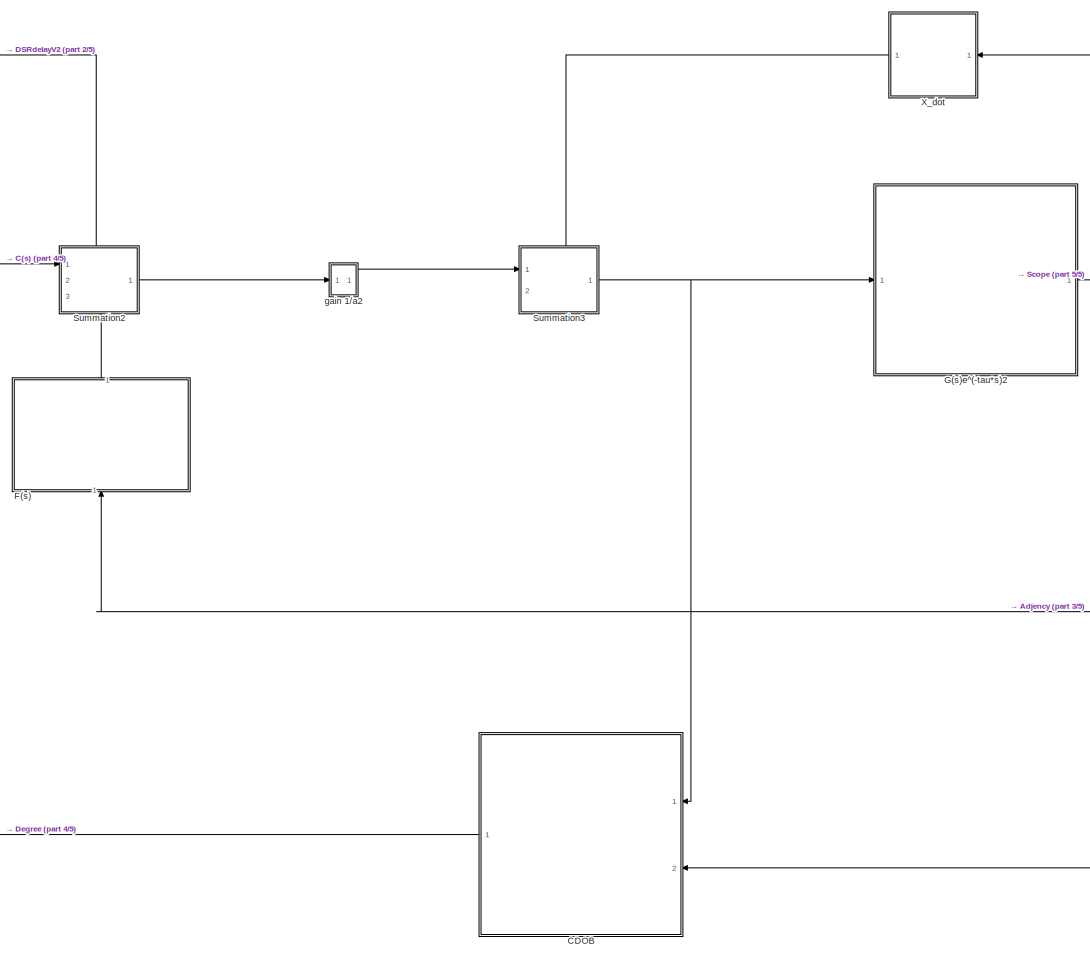
[diagram: root canvas - part 1/5, right side, full height]
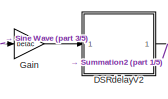
[diagram: root canvas - part 2/5, top center region]
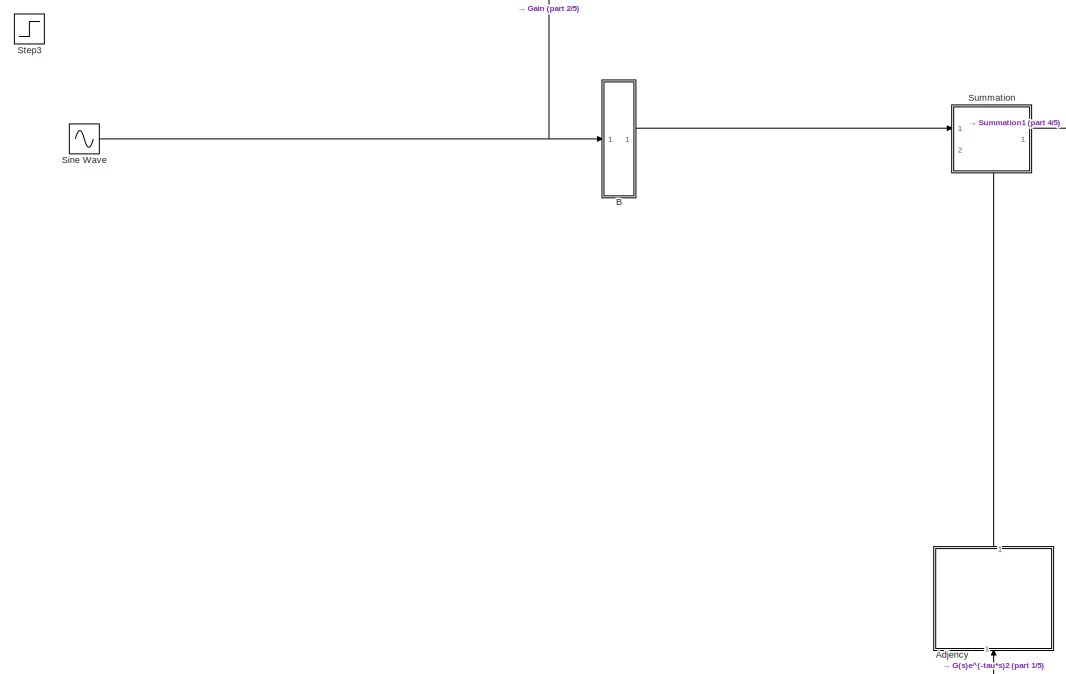
[diagram: root canvas - part 3/5, middle left region]
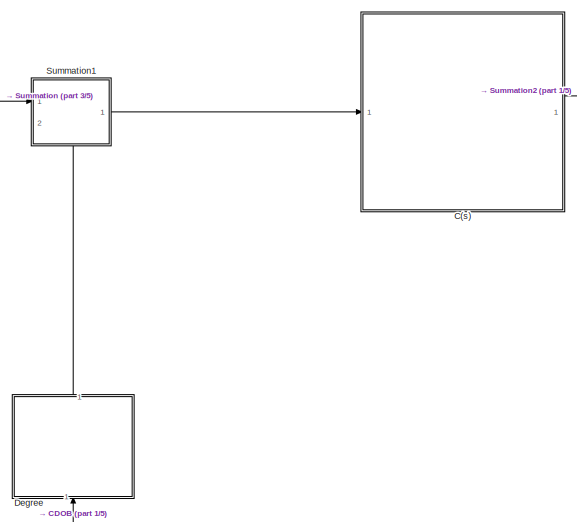
[diagram: root canvas - part 4/5, central region]
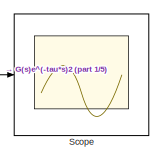
[diagram: root canvas - part 5/5, top right region]
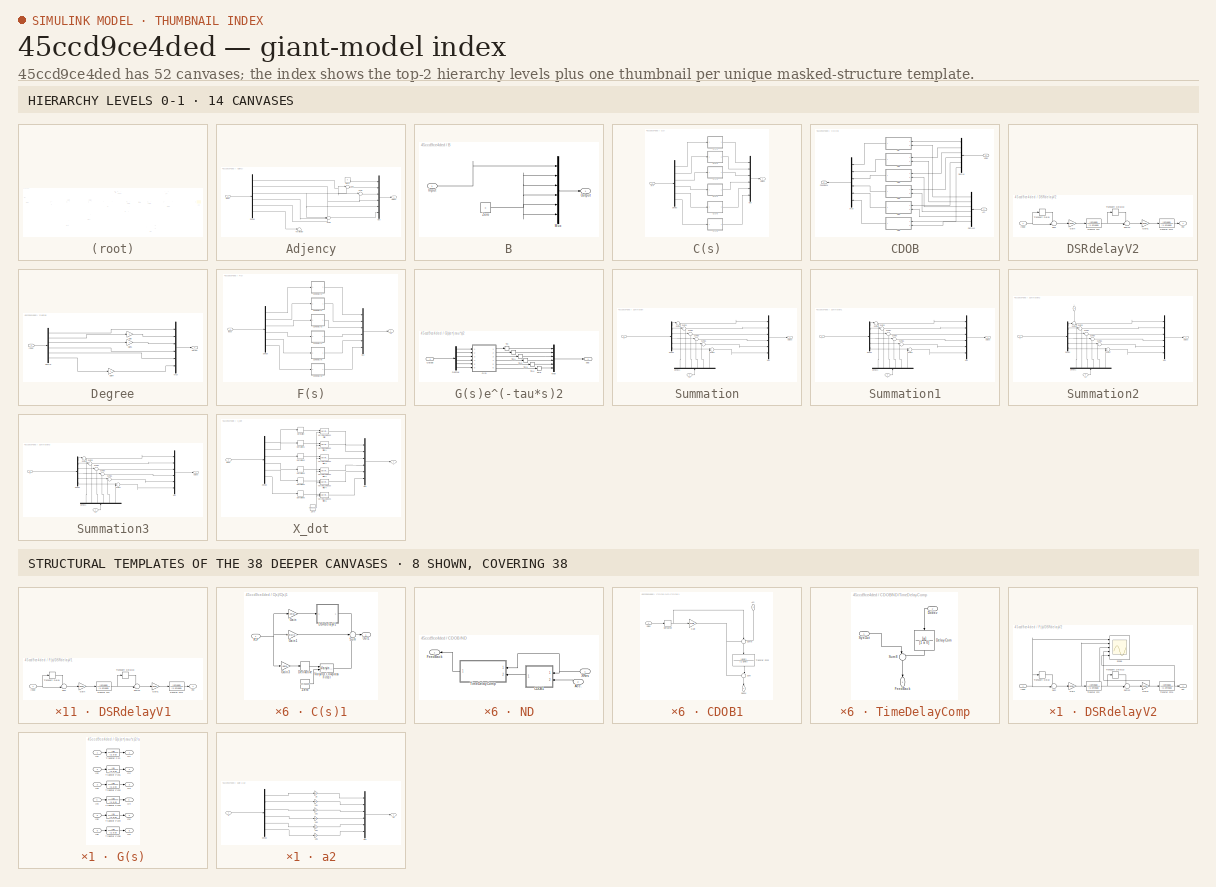
[diagram: thumbnail index - top-2 hierarchy levels (14 canvases) + 8 structural-template representatives of the remaining 38 canvases]
MODEL slx_45ccd9ce4ded
KIND model
CONFIG AbsTol = auto
CONFIG EnableMultiTasking = off
CONFIG FixedStep = auto
CONFIG MaxStep = auto
CONFIG MinStep = auto
CONFIG RelTol = 1e-3
CONFIG SampleTimeConstraint = Unconstrained
CONFIG SolverName = VariableStepAuto
CONFIG StartTime = 0.0
CONFIG StopTime = 10.0
BLOCK [SubSystem] Adjency
  NameLocation = right
  Ports = [1, 1]
  RequestExecContextInheritance = off
BLOCK [Demux] Adjency/Demux
  Outputs = 6
  Ports = [1, 6]
BLOCK [Inport] Adjency/Input
BLOCK [Mux] Adjency/Mux
  DisplayOption = bar
  Inputs = 6
  Ports = [6, 1]
BLOCK [Outport] Adjency/Output
BLOCK [Sum] Adjency/Sum
  Inputs = |++
  Ports = [2, 1]
BLOCK [Sum] Adjency/Sum1
  Inputs = |++
  Ports = [2, 1]
BLOCK [Sum] Adjency/Sum2
  Inputs = ++++
  Ports = [4, 1]
BLOCK [Terminator] Adjency/Terminator
BLOCK [Constant] Adjency/Zero
  OutDataTypeStr = Inherit: Inherit via back propagation
  Value = 0
BLOCK [SubSystem] B
  Ports = [1, 1]
  RequestExecContextInheritance = off
BLOCK [Inport] B/Input
BLOCK [Mux] B/Mux
  DisplayOption = bar
  Inputs = 6
  Ports = [6, 1]
BLOCK [Outport] B/Output
BLOCK [Constant] B/Zero
  OutDataTypeStr = Inherit: Inherit via back propagation
  Value = 0
BLOCK [SubSystem] C(s)
  Ports = [1, 1]
  RequestExecContextInheritance = off
BLOCK [SubSystem] C(s)/C(s)1
  Ports = [1, 1]
  RequestExecContextInheritance = off
BLOCK [SubSystem] C(s)/C(s)1/DSRdelayV1
  Ports = [1, 1]
  RequestExecContextInheritance = off
BLOCK [Gain] C(s)/C(s)1/DSRdelayV1/Gain
  Gain = 1/delay
BLOCK [Gain] C(s)/C(s)1/DSRdelayV1/Gain1
  Gain = 1/delay
BLOCK [Inport] C(s)/C(s)1/DSRdelayV1/Input
BLOCK [Sum] C(s)/C(s)1/DSRdelayV1/Sum
  Inputs = -+|
  Ports = [2, 1]
BLOCK [Sum] C(s)/C(s)1/DSRdelayV1/Sum13
  Inputs = -+|
  Ports = [2, 1]
BLOCK [TransferFcn] C(s)/C(s)1/DSRdelayV1/Transfer Fcn
  Denominator = [1 omega]
  Numerator = [omega]
BLOCK [TransferFcn] C(s)/C(s)1/DSRdelayV1/Transfer Fcn1
  Denominator = [1 omega]
  Numerator = [omega]
BLOCK [TransportDelay] C(s)/C(s)1/DSRdelayV1/Transport Delay
  DelayTime = delay
  Ports = [1, 1]
BLOCK [TransportDelay] C(s)/C(s)1/DSRdelayV1/Transport Delay13
  DelayTime = delay
  Ports = [1, 1]
BLOCK [Outport] C(s)/C(s)1/DSRdelayV1/est
BLOCK [Derivative] C(s)/C(s)1/Derivative
BLOCK [Gain] C(s)/C(s)1/Gain
  Gain = betac
BLOCK [Gain] C(s)/C(s)1/Gain1
  Gain = betac*alpha^2
BLOCK [Gain] C(s)/C(s)1/Gain3
  Gain = 2*alpha*betac
BLOCK [Outport] C(s)/C(s)1/Out1
BLOCK [Inport] C(s)/C(s)1/R-F
BLOCK [Sum] C(s)/C(s)1/Sum
  Inputs = ---
  Ports = [3, 1]
BLOCK [Reference] C(s)/C(s)1/Varying Lowpass Filter  REF=cstblocks/Linear Parameter Varying/Varying Lowpass Filter
  Ports = [2, 1]
  SourceBlock = cstblocks/Linear Parameter Varying/Varying Lowpass Filter
  SourceProductBaseCode = CT
  SourceType = Varying Lowpass Filter
BLOCK [Constant] C(s)/C(s)1/Zero
  OutDataTypeStr = Inherit: Inherit via back propagation
  Value = omegader
BLOCK [SubSystem] C(s)/C(s)2
  Ports = [1, 1]
  RequestExecContextInheritance = off
BLOCK [SubSystem] C(s)/C(s)2/DSRdelayV1
  Ports = [1, 1]
  RequestExecContextInheritance = off
BLOCK [Gain] C(s)/C(s)2/DSRdelayV1/Gain
  Gain = 1/delay
BLOCK [Gain] C(s)/C(s)2/DSRdelayV1/Gain1
  Gain = 1/delay
BLOCK [Inport] C(s)/C(s)2/DSRdelayV1/Input
BLOCK [Sum] C(s)/C(s)2/DSRdelayV1/Sum
  Inputs = -+|
  Ports = [2, 1]
BLOCK [Sum] C(s)/C(s)2/DSRdelayV1/Sum13
  Inputs = -+|
  Ports = [2, 1]
BLOCK [TransferFcn] C(s)/C(s)2/DSRdelayV1/Transfer Fcn
  Denominator = [1 omega]
  Numerator = [omega]
BLOCK [TransferFcn] C(s)/C(s)2/DSRdelayV1/Transfer Fcn1
  Denominator = [1 omega]
  Numerator = [omega]
BLOCK [TransportDelay] C(s)/C(s)2/DSRdelayV1/Transport Delay
  DelayTime = delay
  Ports = [1, 1]
BLOCK [TransportDelay] C(s)/C(s)2/DSRdelayV1/Transport Delay13
  DelayTime = delay
  Ports = [1, 1]
BLOCK [Outport] C(s)/C(s)2/DSRdelayV1/est
BLOCK [Derivative] C(s)/C(s)2/Derivative
BLOCK [Gain] C(s)/C(s)2/Gain
  Gain = betac
BLOCK [Gain] C(s)/C(s)2/Gain1
  Gain = betac*alpha^2
BLOCK [Gain] C(s)/C(s)2/Gain3
  Gain = 2*alpha*betac
BLOCK [Outport] C(s)/C(s)2/Out1
BLOCK [Inport] C(s)/C(s)2/R-F
BLOCK [Sum] C(s)/C(s)2/Sum
  Inputs = ---
  Ports = [3, 1]
BLOCK [Reference] C(s)/C(s)2/Varying Lowpass Filter  REF=cstblocks/Linear Parameter Varying/Varying Lowpass Filter
  Ports = [2, 1]
  SourceBlock = cstblocks/Linear Parameter Varying/Varying Lowpass Filter
  SourceProductBaseCode = CT
  SourceType = Varying Lowpass Filter
BLOCK [Constant] C(s)/C(s)2/Zero
  OutDataTypeStr = Inherit: Inherit via back propagation
  Value = omegader
BLOCK [SubSystem] C(s)/C(s)3
  Ports = [1, 1]
  RequestExecContextInheritance = off
BLOCK [SubSystem] C(s)/C(s)3/DSRdelayV1
  Ports = [1, 1]
  RequestExecContextInheritance = off
BLOCK [Gain] C(s)/C(s)3/DSRdelayV1/Gain
  Gain = 1/delay
BLOCK [Gain] C(s)/C(s)3/DSRdelayV1/Gain1
  Gain = 1/delay
BLOCK [Inport] C(s)/C(s)3/DSRdelayV1/Input
BLOCK [Sum] C(s)/C(s)3/DSRdelayV1/Sum
  Inputs = -+|
  Ports = [2, 1]
BLOCK [Sum] C(s)/C(s)3/DSRdelayV1/Sum13
  Inputs = -+|
  Ports = [2, 1]
BLOCK [TransferFcn] C(s)/C(s)3/DSRdelayV1/Transfer Fcn
  Denominator = [1 omega]
  Numerator = [omega]
BLOCK [TransferFcn] C(s)/C(s)3/DSRdelayV1/Transfer Fcn1
  Denominator = [1 omega]
  Numerator = [omega]
BLOCK [TransportDelay] C(s)/C(s)3/DSRdelayV1/Transport Delay
  DelayTime = delay
  Ports = [1, 1]
BLOCK [TransportDelay] C(s)/C(s)3/DSRdelayV1/Transport Delay13
  DelayTime = delay
  Ports = [1, 1]
BLOCK [Outport] C(s)/C(s)3/DSRdelayV1/est
BLOCK [Derivative] C(s)/C(s)3/Derivative
BLOCK [Gain] C(s)/C(s)3/Gain
  Gain = betac
BLOCK [Gain] C(s)/C(s)3/Gain1
  Gain = betac*alpha^2
BLOCK [Gain] C(s)/C(s)3/Gain3
  Gain = 2*alpha*betac
BLOCK [Outport] C(s)/C(s)3/Out1
BLOCK [Inport] C(s)/C(s)3/R-F
BLOCK [Sum] C(s)/C(s)3/Sum
  Inputs = ---
  Ports = [3, 1]
BLOCK [Reference] C(s)/C(s)3/Varying Lowpass Filter  REF=cstblocks/Linear Parameter Varying/Varying Lowpass Filter
  Ports = [2, 1]
  SourceBlock = cstblocks/Linear Parameter Varying/Varying Lowpass Filter
  SourceProductBaseCode = CT
  SourceType = Varying Lowpass Filter
BLOCK [Constant] C(s)/C(s)3/Zero
  OutDataTypeStr = Inherit: Inherit via back propagation
  Value = omegader
BLOCK [SubSystem] C(s)/C(s)4
  Ports = [1, 1]
  RequestExecContextInheritance = off
BLOCK [SubSystem] C(s)/C(s)4/DSRdelayV1
  Ports = [1, 1]
  RequestExecContextInheritance = off
BLOCK [Gain] C(s)/C(s)4/DSRdelayV1/Gain
  Gain = 1/delay
BLOCK [Gain] C(s)/C(s)4/DSRdelayV1/Gain1
  Gain = 1/delay
BLOCK [Inport] C(s)/C(s)4/DSRdelayV1/Input
BLOCK [Sum] C(s)/C(s)4/DSRdelayV1/Sum
  Inputs = -+|
  Ports = [2, 1]
BLOCK [Sum] C(s)/C(s)4/DSRdelayV1/Sum13
  Inputs = -+|
  Ports = [2, 1]
BLOCK [TransferFcn] C(s)/C(s)4/DSRdelayV1/Transfer Fcn
  Denominator = [1 omega]
  Numerator = [omega]
BLOCK [TransferFcn] C(s)/C(s)4/DSRdelayV1/Transfer Fcn1
  Denominator = [1 omega]
  Numerator = [omega]
BLOCK [TransportDelay] C(s)/C(s)4/DSRdelayV1/Transport Delay
  DelayTime = delay
  Ports = [1, 1]
BLOCK [TransportDelay] C(s)/C(s)4/DSRdelayV1/Transport Delay13
  DelayTime = delay
  Ports = [1, 1]
BLOCK [Outport] C(s)/C(s)4/DSRdelayV1/est
BLOCK [Derivative] C(s)/C(s)4/Derivative
BLOCK [Gain] C(s)/C(s)4/Gain
  Gain = betac
BLOCK [Gain] C(s)/C(s)4/Gain1
  Gain = betac*alpha^2
BLOCK [Gain] C(s)/C(s)4/Gain3
  Gain = 2*alpha*betac
BLOCK [Outport] C(s)/C(s)4/Out1
BLOCK [Inport] C(s)/C(s)4/R-F
BLOCK [Sum] C(s)/C(s)4/Sum
  Inputs = ---
  Ports = [3, 1]
BLOCK [Reference] C(s)/C(s)4/Varying Lowpass Filter  REF=cstblocks/Linear Parameter Varying/Varying Lowpass Filter
  Ports = [2, 1]
  SourceBlock = cstblocks/Linear Parameter Varying/Varying Lowpass Filter
  SourceProductBaseCode = CT
  SourceType = Varying Lowpass Filter
BLOCK [Constant] C(s)/C(s)4/Zero
  OutDataTypeStr = Inherit: Inherit via back propagation
  Value = omegader
BLOCK [SubSystem] C(s)/C(s)5
  Ports = [1, 1]
  RequestExecContextInheritance = off
BLOCK [SubSystem] C(s)/C(s)5/DSRdelayV1
  Ports = [1, 1]
  RequestExecContextInheritance = off
BLOCK [Gain] C(s)/C(s)5/DSRdelayV1/Gain
  Gain = 1/delay
BLOCK [Gain] C(s)/C(s)5/DSRdelayV1/Gain1
  Gain = 1/delay
BLOCK [Inport] C(s)/C(s)5/DSRdelayV1/Input
BLOCK [Sum] C(s)/C(s)5/DSRdelayV1/Sum
  Inputs = -+|
  Ports = [2, 1]
BLOCK [Sum] C(s)/C(s)5/DSRdelayV1/Sum13
  Inputs = -+|
  Ports = [2, 1]
BLOCK [TransferFcn] C(s)/C(s)5/DSRdelayV1/Transfer Fcn
  Denominator = [1 omega]
  Numerator = [omega]
BLOCK [TransferFcn] C(s)/C(s)5/DSRdelayV1/Transfer Fcn1
  Denominator = [1 omega]
  Numerator = [omega]
BLOCK [TransportDelay] C(s)/C(s)5/DSRdelayV1/Transport Delay
  DelayTime = delay
  Ports = [1, 1]
BLOCK [TransportDelay] C(s)/C(s)5/DSRdelayV1/Transport Delay13
  DelayTime = delay
  Ports = [1, 1]
BLOCK [Outport] C(s)/C(s)5/DSRdelayV1/est
BLOCK [Derivative] C(s)/C(s)5/Derivative
BLOCK [Gain] C(s)/C(s)5/Gain
  Gain = betac
BLOCK [Gain] C(s)/C(s)5/Gain1
  Gain = betac*alpha^2
BLOCK [Gain] C(s)/C(s)5/Gain3
  Gain = 2*alpha*betac
BLOCK [Outport] C(s)/C(s)5/Out1
BLOCK [Inport] C(s)/C(s)5/R-F
BLOCK [Sum] C(s)/C(s)5/Sum
  Inputs = ---
  Ports = [3, 1]
BLOCK [Reference] C(s)/C(s)5/Varying Lowpass Filter  REF=cstblocks/Linear Parameter Varying/Varying Lowpass Filter
  Ports = [2, 1]
  SourceBlock = cstblocks/Linear Parameter Varying/Varying Lowpass Filter
  SourceProductBaseCode = CT
  SourceType = Varying Lowpass Filter
BLOCK [Constant] C(s)/C(s)5/Zero
  OutDataTypeStr = Inherit: Inherit via back propagation
  Value = omegader
BLOCK [SubSystem] C(s)/C(s)6
  Ports = [1, 1]
  RequestExecContextInheritance = off
BLOCK [SubSystem] C(s)/C(s)6/DSRdelayV1
  Ports = [1, 1]
  RequestExecContextInheritance = off
BLOCK [Gain] C(s)/C(s)6/DSRdelayV1/Gain
  Gain = 1/delay
BLOCK [Gain] C(s)/C(s)6/DSRdelayV1/Gain1
  Gain = 1/delay
BLOCK [Inport] C(s)/C(s)6/DSRdelayV1/Input
BLOCK [Sum] C(s)/C(s)6/DSRdelayV1/Sum
  Inputs = -+|
  Ports = [2, 1]
BLOCK [Sum] C(s)/C(s)6/DSRdelayV1/Sum13
  Inputs = -+|
  Ports = [2, 1]
BLOCK [TransferFcn] C(s)/C(s)6/DSRdelayV1/Transfer Fcn
  Denominator = [1 omega]
  Numerator = [omega]
BLOCK [TransferFcn] C(s)/C(s)6/DSRdelayV1/Transfer Fcn1
  Denominator = [1 omega]
  Numerator = [omega]
BLOCK [TransportDelay] C(s)/C(s)6/DSRdelayV1/Transport Delay
  DelayTime = delay
  Ports = [1, 1]
BLOCK [TransportDelay] C(s)/C(s)6/DSRdelayV1/Transport Delay13
  DelayTime = delay
  Ports = [1, 1]
BLOCK [Outport] C(s)/C(s)6/DSRdelayV1/est
BLOCK [Derivative] C(s)/C(s)6/Derivative
BLOCK [Gain] C(s)/C(s)6/Gain
  Gain = betac
BLOCK [Gain] C(s)/C(s)6/Gain1
  Gain = betac*alpha^2
BLOCK [Gain] C(s)/C(s)6/Gain3
  Gain = 2*alpha*betac
BLOCK [Outport] C(s)/C(s)6/Out1
BLOCK [Inport] C(s)/C(s)6/R-F
BLOCK [Sum] C(s)/C(s)6/Sum
  Inputs = ---
  Ports = [3, 1]
BLOCK [Reference] C(s)/C(s)6/Varying Lowpass Filter  REF=cstblocks/Linear Parameter Varying/Varying Lowpass Filter
  Ports = [2, 1]
  SourceBlock = cstblocks/Linear Parameter Varying/Varying Lowpass Filter
  SourceProductBaseCode = CT
  SourceType = Varying Lowpass Filter
BLOCK [Constant] C(s)/C(s)6/Zero
  OutDataTypeStr = Inherit: Inherit via back propagation
  Value = omegader
BLOCK [Demux] C(s)/Demux
  Outputs = 6
  Ports = [1, 6]
BLOCK [Mux] C(s)/Mux
  DisplayOption = bar
  Inputs = 6
  Ports = [6, 1]
BLOCK [Outport] C(s)/Output
BLOCK [Inport] C(s)/R-F
BLOCK [SubSystem] CDOB
  NameLocation = top
  Ports = [2, 1]
  RequestExecContextInheritance = off
BLOCK [Inport] CDOB/Acc.
BLOCK [Demux] CDOB/Demux
  Outputs = 6
  Ports = [1, 6]
BLOCK [Demux] CDOB/Demux1
  Outputs = 6
  Ports = [1, 6]
BLOCK [Outport] CDOB/FeedBack
BLOCK [Mux] CDOB/Mux
  DisplayOption = bar
  Inputs = 6
  Ports = [6, 1]
BLOCK [SubSystem] CDOB/ND
  NameLocation = top
  Ports = [2, 1]
  RequestExecContextInheritance = off
BLOCK [Inport] CDOB/ND/Acc.
  Port = 2
BLOCK [SubSystem] CDOB/ND/CDOB1
  NameLocation = top
  Ports = [2, 1]
  RequestExecContextInheritance = off
BLOCK [Inport] CDOB/ND/CDOB1/Acc.
  NameLocation = left
  Port = 2
BLOCK [Derivative] CDOB/ND/CDOB1/Derivative
  CoefficientInTFapproximation = 0
BLOCK [Outport] CDOB/ND/CDOB1/Dobsv
  NameLocation = left
BLOCK [Gain] CDOB/ND/CDOB1/Gain
  Gain = gnet/a
BLOCK [Sum] CDOB/ND/CDOB1/Sum
  Inputs = -+|
  NameLocation = left
  Ports = [2, 1]
BLOCK [Sum] CDOB/ND/CDOB1/Sum8
  Inputs = +-+
  NameLocation = left
  Ports = [3, 1]
BLOCK [TransferFcn] CDOB/ND/CDOB1/Transfer Fcn2
  Denominator = [1 gnet]
  NameLocation = left
  Numerator = [gnet]
BLOCK [Inport] CDOB/ND/CDOB1/XRes
BLOCK [Outport] CDOB/ND/FeedBack
BLOCK [SubSystem] CDOB/ND/TimeDelayComp
  NameLocation = top
  Ports = [2, 1]
  RequestExecContextInheritance = off
BLOCK [TransferFcn] CDOB/ND/TimeDelayComp/DelayCom
  Denominator = [1 a 0]
  NameLocation = left
  Numerator = [a]
BLOCK [Inport] CDOB/ND/TimeDelayComp/Dobsv
  NameLocation = top
  Port = 2
BLOCK [Outport] CDOB/ND/TimeDelayComp/FeedBack
  NameLocation = left
BLOCK [Sum] CDOB/ND/TimeDelayComp/Sum8
  Inputs = |++
  NameLocation = left
  Ports = [2, 1]
BLOCK [Inport] CDOB/ND/TimeDelayComp/SysOut
BLOCK [Inport] CDOB/ND/XRes
BLOCK [SubSystem] CDOB/ND1
  NameLocation = top
  Ports = [2, 1]
  RequestExecContextInheritance = off
BLOCK [Inport] CDOB/ND1/Acc.
  Port = 2
BLOCK [SubSystem] CDOB/ND1/CDOB1
  NameLocation = top
  Ports = [2, 1]
  RequestExecContextInheritance = off
BLOCK [Inport] CDOB/ND1/CDOB1/Acc.
  NameLocation = left
  Port = 2
BLOCK [Derivative] CDOB/ND1/CDOB1/Derivative
  CoefficientInTFapproximation = 0
BLOCK [Outport] CDOB/ND1/CDOB1/Dobsv
  NameLocation = left
BLOCK [Gain] CDOB/ND1/CDOB1/Gain
  Gain = gnet/a
BLOCK [Sum] CDOB/ND1/CDOB1/Sum
  Inputs = -+|
  NameLocation = left
  Ports = [2, 1]
BLOCK [Sum] CDOB/ND1/CDOB1/Sum8
  Inputs = +-+
  NameLocation = left
  Ports = [3, 1]
BLOCK [TransferFcn] CDOB/ND1/CDOB1/Transfer Fcn2
  Denominator = [1 gnet]
  NameLocation = left
  Numerator = [gnet]
BLOCK [Inport] CDOB/ND1/CDOB1/XRes
BLOCK [Outport] CDOB/ND1/FeedBack
BLOCK [SubSystem] CDOB/ND1/TimeDelayComp
  NameLocation = top
  Ports = [2, 1]
  RequestExecContextInheritance = off
BLOCK [TransferFcn] CDOB/ND1/TimeDelayComp/DelayCom
  Denominator = [1 a 0]
  NameLocation = left
  Numerator = [a]
BLOCK [Inport] CDOB/ND1/TimeDelayComp/Dobsv
  NameLocation = top
  Port = 2
BLOCK [Outport] CDOB/ND1/TimeDelayComp/FeedBack
  NameLocation = left
BLOCK [Sum] CDOB/ND1/TimeDelayComp/Sum8
  Inputs = |++
  NameLocation = left
  Ports = [2, 1]
BLOCK [Inport] CDOB/ND1/TimeDelayComp/SysOut
BLOCK [Inport] CDOB/ND1/XRes
BLOCK [SubSystem] CDOB/ND2
  NameLocation = top
  Ports = [2, 1]
  RequestExecContextInheritance = off
BLOCK [Inport] CDOB/ND2/Acc.
  Port = 2
BLOCK [SubSystem] CDOB/ND2/CDOB1
  NameLocation = top
  Ports = [2, 1]
  RequestExecContextInheritance = off
BLOCK [Inport] CDOB/ND2/CDOB1/Acc.
  NameLocation = left
  Port = 2
BLOCK [Derivative] CDOB/ND2/CDOB1/Derivative
  CoefficientInTFapproximation = 0
BLOCK [Outport] CDOB/ND2/CDOB1/Dobsv
  NameLocation = left
BLOCK [Gain] CDOB/ND2/CDOB1/Gain
  Gain = gnet/a
BLOCK [Sum] CDOB/ND2/CDOB1/Sum
  Inputs = -+|
  NameLocation = left
  Ports = [2, 1]
BLOCK [Sum] CDOB/ND2/CDOB1/Sum8
  Inputs = +-+
  NameLocation = left
  Ports = [3, 1]
BLOCK [TransferFcn] CDOB/ND2/CDOB1/Transfer Fcn2
  Denominator = [1 gnet]
  NameLocation = left
  Numerator = [gnet]
BLOCK [Inport] CDOB/ND2/CDOB1/XRes
BLOCK [Outport] CDOB/ND2/FeedBack
BLOCK [SubSystem] CDOB/ND2/TimeDelayComp
  NameLocation = top
  Ports = [2, 1]
  RequestExecContextInheritance = off
BLOCK [TransferFcn] CDOB/ND2/TimeDelayComp/DelayCom
  Denominator = [1 a 0]
  NameLocation = left
  Numerator = [a]
BLOCK [Inport] CDOB/ND2/TimeDelayComp/Dobsv
  NameLocation = top
  Port = 2
BLOCK [Outport] CDOB/ND2/TimeDelayComp/FeedBack
  NameLocation = left
BLOCK [Sum] CDOB/ND2/TimeDelayComp/Sum8
  Inputs = |++
  NameLocation = left
  Ports = [2, 1]
BLOCK [Inport] CDOB/ND2/TimeDelayComp/SysOut
BLOCK [Inport] CDOB/ND2/XRes
BLOCK [SubSystem] CDOB/ND3
  NameLocation = top
  Ports = [2, 1]
  RequestExecContextInheritance = off
BLOCK [Inport] CDOB/ND3/Acc.
  Port = 2
BLOCK [SubSystem] CDOB/ND3/CDOB1
  NameLocation = top
  Ports = [2, 1]
  RequestExecContextInheritance = off
BLOCK [Inport] CDOB/ND3/CDOB1/Acc.
  NameLocation = left
  Port = 2
BLOCK [Derivative] CDOB/ND3/CDOB1/Derivative
  CoefficientInTFapproximation = 0
BLOCK [Outport] CDOB/ND3/CDOB1/Dobsv
  NameLocation = left
BLOCK [Gain] CDOB/ND3/CDOB1/Gain
  Gain = gnet/a
BLOCK [Sum] CDOB/ND3/CDOB1/Sum
  Inputs = -+|
  NameLocation = left
  Ports = [2, 1]
BLOCK [Sum] CDOB/ND3/CDOB1/Sum8
  Inputs = +-+
  NameLocation = left
  Ports = [3, 1]
BLOCK [TransferFcn] CDOB/ND3/CDOB1/Transfer Fcn2
  Denominator = [1 gnet]
  NameLocation = left
  Numerator = [gnet]
BLOCK [Inport] CDOB/ND3/CDOB1/XRes
BLOCK [Outport] CDOB/ND3/FeedBack
BLOCK [SubSystem] CDOB/ND3/TimeDelayComp
  NameLocation = top
  Ports = [2, 1]
  RequestExecContextInheritance = off
BLOCK [TransferFcn] CDOB/ND3/TimeDelayComp/DelayCom
  Denominator = [1 a 0]
  NameLocation = left
  Numerator = [a]
BLOCK [Inport] CDOB/ND3/TimeDelayComp/Dobsv
  NameLocation = top
  Port = 2
BLOCK [Outport] CDOB/ND3/TimeDelayComp/FeedBack
  NameLocation = left
BLOCK [Sum] CDOB/ND3/TimeDelayComp/Sum8
  Inputs = |++
  NameLocation = left
  Ports = [2, 1]
BLOCK [Inport] CDOB/ND3/TimeDelayComp/SysOut
BLOCK [Inport] CDOB/ND3/XRes
BLOCK [SubSystem] CDOB/ND4
  NameLocation = top
  Ports = [2, 1]
  RequestExecContextInheritance = off
BLOCK [Inport] CDOB/ND4/Acc.
  Port = 2
BLOCK [SubSystem] CDOB/ND4/CDOB1
  NameLocation = top
  Ports = [2, 1]
  RequestExecContextInheritance = off
BLOCK [Inport] CDOB/ND4/CDOB1/Acc.
  NameLocation = left
  Port = 2
BLOCK [Derivative] CDOB/ND4/CDOB1/Derivative
  CoefficientInTFapproximation = 0
BLOCK [Outport] CDOB/ND4/CDOB1/Dobsv
  NameLocation = left
BLOCK [Gain] CDOB/ND4/CDOB1/Gain
  Gain = gnet/a
BLOCK [Sum] CDOB/ND4/CDOB1/Sum
  Inputs = -+|
  NameLocation = left
  Ports = [2, 1]
BLOCK [Sum] CDOB/ND4/CDOB1/Sum8
  Inputs = +-+
  NameLocation = left
  Ports = [3, 1]
BLOCK [TransferFcn] CDOB/ND4/CDOB1/Transfer Fcn2
  Denominator = [1 gnet]
  NameLocation = left
  Numerator = [gnet]
BLOCK [Inport] CDOB/ND4/CDOB1/XRes
BLOCK [Outport] CDOB/ND4/FeedBack
BLOCK [SubSystem] CDOB/ND4/TimeDelayComp
  NameLocation = top
  Ports = [2, 1]
  RequestExecContextInheritance = off
BLOCK [TransferFcn] CDOB/ND4/TimeDelayComp/DelayCom
  Denominator = [1 a 0]
  NameLocation = left
  Numerator = [a]
BLOCK [Inport] CDOB/ND4/TimeDelayComp/Dobsv
  NameLocation = top
  Port = 2
BLOCK [Outport] CDOB/ND4/TimeDelayComp/FeedBack
  NameLocation = left
BLOCK [Sum] CDOB/ND4/TimeDelayComp/Sum8
  Inputs = |++
  NameLocation = left
  Ports = [2, 1]
BLOCK [Inport] CDOB/ND4/TimeDelayComp/SysOut
BLOCK [Inport] CDOB/ND4/XRes
BLOCK [SubSystem] CDOB/ND5
  NameLocation = top
  Ports = [2, 1]
  RequestExecContextInheritance = off
BLOCK [Inport] CDOB/ND5/Acc.
  Port = 2
BLOCK [SubSystem] CDOB/ND5/CDOB1
  NameLocation = top
  Ports = [2, 1]
  RequestExecContextInheritance = off
BLOCK [Inport] CDOB/ND5/CDOB1/Acc.
  NameLocation = left
  Port = 2
BLOCK [Derivative] CDOB/ND5/CDOB1/Derivative
  CoefficientInTFapproximation = 0
BLOCK [Outport] CDOB/ND5/CDOB1/Dobsv
  NameLocation = left
BLOCK [Gain] CDOB/ND5/CDOB1/Gain
  Gain = gnet/a
BLOCK [Sum] CDOB/ND5/CDOB1/Sum
  Inputs = -+|
  NameLocation = left
  Ports = [2, 1]
BLOCK [Sum] CDOB/ND5/CDOB1/Sum8
  Inputs = +-+
  NameLocation = left
  Ports = [3, 1]
BLOCK [TransferFcn] CDOB/ND5/CDOB1/Transfer Fcn2
  Denominator = [1 gnet]
  NameLocation = left
  Numerator = [gnet]
BLOCK [Inport] CDOB/ND5/CDOB1/XRes
BLOCK [Outport] CDOB/ND5/FeedBack
BLOCK [SubSystem] CDOB/ND5/TimeDelayComp
  NameLocation = top
  Ports = [2, 1]
  RequestExecContextInheritance = off
BLOCK [TransferFcn] CDOB/ND5/TimeDelayComp/DelayCom
  Denominator = [1 a 0]
  NameLocation = left
  Numerator = [a]
BLOCK [Inport] CDOB/ND5/TimeDelayComp/Dobsv
  NameLocation = top
  Port = 2
BLOCK [Outport] CDOB/ND5/TimeDelayComp/FeedBack
  NameLocation = left
BLOCK [Sum] CDOB/ND5/TimeDelayComp/Sum8
  Inputs = |++
  NameLocation = left
  Ports = [2, 1]
BLOCK [Inport] CDOB/ND5/TimeDelayComp/SysOut
BLOCK [Inport] CDOB/ND5/XRes
BLOCK [Inport] CDOB/XRes
  Port = 2
BLOCK [SubSystem] DSRdelayV2
  Ports = [1, 1]
  RequestExecContextInheritance = off
BLOCK [Gain] DSRdelayV2/Gain
  Gain = 1/delay
BLOCK [Gain] DSRdelayV2/Gain1
  Gain = 1/delay
BLOCK [Inport] DSRdelayV2/Input
BLOCK [Sum] DSRdelayV2/Sum
  Inputs = -+|
  Ports = [2, 1]
BLOCK [Sum] DSRdelayV2/Sum13
  Inputs = -+|
  Ports = [2, 1]
BLOCK [TransferFcn] DSRdelayV2/Transfer Fcn
  Denominator = [1 omega]
  Numerator = [omega]
BLOCK [TransferFcn] DSRdelayV2/Transfer Fcn1
  Denominator = [1 omega]
  Numerator = [omega]
BLOCK [TransportDelay] DSRdelayV2/Transport Delay
  DelayTime = delay
  Ports = [1, 1]
BLOCK [TransportDelay] DSRdelayV2/Transport Delay13
  DelayTime = delay
  Ports = [1, 1]
BLOCK [Outport] DSRdelayV2/est
BLOCK [SubSystem] Degree
  NameLocation = left
  Ports = [1, 1]
  RequestExecContextInheritance = off
BLOCK [Demux] Degree/Demux
  Outputs = 6
  Ports = [1, 6]
BLOCK [Gain] Degree/Gain
  Gain = 2
BLOCK [Gain] Degree/Gain1
  Gain = 2
BLOCK [Gain] Degree/Gain4
  Gain = 4
BLOCK [Inport] Degree/Input
BLOCK [Mux] Degree/Mux
  DisplayOption = bar
  Inputs = 6
  Ports = [6, 1]
BLOCK [Outport] Degree/Output
BLOCK [SubSystem] F(s)
  NameLocation = right
  Ports = [1, 1]
  RequestExecContextInheritance = off
BLOCK [Outport] F(s)/+1
BLOCK [SubSystem] F(s)/DSRdelayV1
  Ports = [1, 1]
  RequestExecContextInheritance = off
BLOCK [Gain] F(s)/DSRdelayV1/Gain
  Gain = 1/delay
BLOCK [Gain] F(s)/DSRdelayV1/Gain1
  Gain = 1/delay
BLOCK [Inport] F(s)/DSRdelayV1/Input
BLOCK [Sum] F(s)/DSRdelayV1/Sum
  Inputs = -+|
  Ports = [2, 1]
BLOCK [Sum] F(s)/DSRdelayV1/Sum13
  Inputs = -+|
  Ports = [2, 1]
BLOCK [TransferFcn] F(s)/DSRdelayV1/Transfer Fcn
  Denominator = [1 omega]
  Numerator = [omega]
BLOCK [TransferFcn] F(s)/DSRdelayV1/Transfer Fcn1
  Denominator = [1 omega]
  Numerator = [omega]
BLOCK [TransportDelay] F(s)/DSRdelayV1/Transport Delay
  DelayTime = delay
  Ports = [1, 1]
BLOCK [TransportDelay] F(s)/DSRdelayV1/Transport Delay13
  DelayTime = delay
  Ports = [1, 1]
BLOCK [Outport] F(s)/DSRdelayV1/est
BLOCK [SubSystem] F(s)/DSRdelayV2
  Ports = [1, 1]
  RequestExecContextInheritance = off
BLOCK [Gain] F(s)/DSRdelayV2/Gain
  Gain = 1/delay
BLOCK [Gain] F(s)/DSRdelayV2/Gain1
  Gain = 1/delay
BLOCK [Inport] F(s)/DSRdelayV2/Input
BLOCK [Scope] F(s)/DSRdelayV2/Scope
  Floating = off
  NumInputPorts = 5
  Ports = [5]
  ScopeSpecificationString = Simulink.scopes.TimeScopeBlockCfg('CurrentConfiguration', extmgr.ConfigurationSet(extmgr.Configuration('Core','General UI',true),extmgr.Configuration('Core','Source UI',true),extmgr.Configuration('Sources','WiredSimulink',true,'DataLoggingVariableName','ScopeData6'),extmgr.Configuration('Visuals','Time Domain',true,'SerializedDisplays',{struct('MinYLimReal','-0.30168','MaxYLimReal','1.37276','YLab...<+1440ch>
BLOCK [Sum] F(s)/DSRdelayV2/Sum
  Inputs = -+|
  Ports = [2, 1]
BLOCK [Sum] F(s)/DSRdelayV2/Sum13
  Inputs = -+|
  Ports = [2, 1]
BLOCK [TransferFcn] F(s)/DSRdelayV2/Transfer Fcn
  Denominator = [1 omega]
  Numerator = [omega]
BLOCK [TransferFcn] F(s)/DSRdelayV2/Transfer Fcn1
  Denominator = [1 omega]
  Numerator = [omega]
BLOCK [TransportDelay] F(s)/DSRdelayV2/Transport Delay
  DelayTime = delay
  Ports = [1, 1]
BLOCK [TransportDelay] F(s)/DSRdelayV2/Transport Delay13
  DelayTime = delay
  Ports = [1, 1]
BLOCK [Outport] F(s)/DSRdelayV2/est
BLOCK [SubSystem] F(s)/DSRdelayV3
  Ports = [1, 1]
  RequestExecContextInheritance = off
BLOCK [Gain] F(s)/DSRdelayV3/Gain
  Gain = 1/delay
BLOCK [Gain] F(s)/DSRdelayV3/Gain1
  Gain = 1/delay
BLOCK [Inport] F(s)/DSRdelayV3/Input
BLOCK [Sum] F(s)/DSRdelayV3/Sum
  Inputs = -+|
  Ports = [2, 1]
BLOCK [Sum] F(s)/DSRdelayV3/Sum13
  Inputs = -+|
  Ports = [2, 1]
BLOCK [TransferFcn] F(s)/DSRdelayV3/Transfer Fcn
  Denominator = [1 omega]
  Numerator = [omega]
BLOCK [TransferFcn] F(s)/DSRdelayV3/Transfer Fcn1
  Denominator = [1 omega]
  Numerator = [omega]
BLOCK [TransportDelay] F(s)/DSRdelayV3/Transport Delay
  DelayTime = delay
  Ports = [1, 1]
BLOCK [TransportDelay] F(s)/DSRdelayV3/Transport Delay13
  DelayTime = delay
  Ports = [1, 1]
BLOCK [Outport] F(s)/DSRdelayV3/est
BLOCK [SubSystem] F(s)/DSRdelayV4
  Ports = [1, 1]
  RequestExecContextInheritance = off
BLOCK [Gain] F(s)/DSRdelayV4/Gain
  Gain = 1/delay
BLOCK [Gain] F(s)/DSRdelayV4/Gain1
  Gain = 1/delay
BLOCK [Inport] F(s)/DSRdelayV4/Input
BLOCK [Sum] F(s)/DSRdelayV4/Sum
  Inputs = -+|
  Ports = [2, 1]
BLOCK [Sum] F(s)/DSRdelayV4/Sum13
  Inputs = -+|
  Ports = [2, 1]
BLOCK [TransferFcn] F(s)/DSRdelayV4/Transfer Fcn
  Denominator = [1 omega]
  Numerator = [omega]
BLOCK [TransferFcn] F(s)/DSRdelayV4/Transfer Fcn1
  Denominator = [1 omega]
  Numerator = [omega]
BLOCK [TransportDelay] F(s)/DSRdelayV4/Transport Delay
  DelayTime = delay
  Ports = [1, 1]
BLOCK [TransportDelay] F(s)/DSRdelayV4/Transport Delay13
  DelayTime = delay
  Ports = [1, 1]
BLOCK [Outport] F(s)/DSRdelayV4/est
BLOCK [SubSystem] F(s)/DSRdelayV5
  Ports = [1, 1]
  RequestExecContextInheritance = off
BLOCK [Gain] F(s)/DSRdelayV5/Gain
  Gain = 1/delay
BLOCK [Gain] F(s)/DSRdelayV5/Gain1
  Gain = 1/delay
BLOCK [Inport] F(s)/DSRdelayV5/Input
BLOCK [Sum] F(s)/DSRdelayV5/Sum
  Inputs = -+|
  Ports = [2, 1]
BLOCK [Sum] F(s)/DSRdelayV5/Sum13
  Inputs = -+|
  Ports = [2, 1]
BLOCK [TransferFcn] F(s)/DSRdelayV5/Transfer Fcn
  Denominator = [1 omega]
  Numerator = [omega]
BLOCK [TransferFcn] F(s)/DSRdelayV5/Transfer Fcn1
  Denominator = [1 omega]
  Numerator = [omega]
BLOCK [TransportDelay] F(s)/DSRdelayV5/Transport Delay
  DelayTime = delay
  Ports = [1, 1]
BLOCK [TransportDelay] F(s)/DSRdelayV5/Transport Delay13
  DelayTime = delay
  Ports = [1, 1]
BLOCK [Outport] F(s)/DSRdelayV5/est
BLOCK [SubSystem] F(s)/DSRdelayV6
  Ports = [1, 1]
  RequestExecContextInheritance = off
BLOCK [Gain] F(s)/DSRdelayV6/Gain
  Gain = 1/delay
BLOCK [Gain] F(s)/DSRdelayV6/Gain1
  Gain = 1/delay
BLOCK [Inport] F(s)/DSRdelayV6/Input
BLOCK [Sum] F(s)/DSRdelayV6/Sum
  Inputs = -+|
  Ports = [2, 1]
BLOCK [Sum] F(s)/DSRdelayV6/Sum13
  Inputs = -+|
  Ports = [2, 1]
BLOCK [TransferFcn] F(s)/DSRdelayV6/Transfer Fcn
  Denominator = [1 omega]
  Numerator = [omega]
BLOCK [TransferFcn] F(s)/DSRdelayV6/Transfer Fcn1
  Denominator = [1 omega]
  Numerator = [omega]
BLOCK [TransportDelay] F(s)/DSRdelayV6/Transport Delay
  DelayTime = delay
  Ports = [1, 1]
BLOCK [TransportDelay] F(s)/DSRdelayV6/Transport Delay13
  DelayTime = delay
  Ports = [1, 1]
BLOCK [Outport] F(s)/DSRdelayV6/est
BLOCK [Demux] F(s)/Demux
  Outputs = 6
  Ports = [1, 6]
BLOCK [Inport] F(s)/Input
BLOCK [Mux] F(s)/Mux
  DisplayOption = bar
  Inputs = 6
  Ports = [6, 1]
BLOCK [SubSystem] G(s)e^(-tau*s)2
  Ports = [1, 1]
  RequestExecContextInheritance = off
BLOCK [Demux] G(s)e^(-tau*s)2/Demux
  Outputs = 6
  Ports = [1, 6]
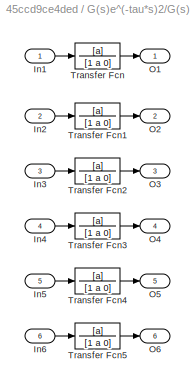
BLOCK [SubSystem] G(s)e^(-tau*s)2/G(s)
  Ports = [6, 6]
  RequestExecContextInheritance = off
BLOCK [Inport] G(s)e^(-tau*s)2/G(s)/In1
BLOCK [Inport] G(s)e^(-tau*s)2/G(s)/In2
  Port = 2
BLOCK [Inport] G(s)e^(-tau*s)2/G(s)/In3
  Port = 3
BLOCK [Inport] G(s)e^(-tau*s)2/G(s)/In4
  Port = 4
BLOCK [Inport] G(s)e^(-tau*s)2/G(s)/In5
  Port = 5
BLOCK [Inport] G(s)e^(-tau*s)2/G(s)/In6
  Port = 6
BLOCK [Outport] G(s)e^(-tau*s)2/G(s)/O1
BLOCK [Outport] G(s)e^(-tau*s)2/G(s)/O2
  Port = 2
BLOCK [Outport] G(s)e^(-tau*s)2/G(s)/O3
  Port = 3
BLOCK [Outport] G(s)e^(-tau*s)2/G(s)/O4
  Port = 4
BLOCK [Outport] G(s)e^(-tau*s)2/G(s)/O5
  Port = 5
BLOCK [Outport] G(s)e^(-tau*s)2/G(s)/O6
  Port = 6
BLOCK [TransferFcn] G(s)e^(-tau*s)2/G(s)/Transfer Fcn
  Denominator = [1 a 0]
  Numerator = [a]
BLOCK [TransferFcn] G(s)e^(-tau*s)2/G(s)/Transfer Fcn1
  Denominator = [1 a 0]
  Numerator = [a]
BLOCK [TransferFcn] G(s)e^(-tau*s)2/G(s)/Transfer Fcn2
  Denominator = [1 a 0]
  Numerator = [a]
BLOCK [TransferFcn] G(s)e^(-tau*s)2/G(s)/Transfer Fcn3
  Denominator = [1 a 0]
  Numerator = [a]
BLOCK [TransferFcn] G(s)e^(-tau*s)2/G(s)/Transfer Fcn4
  Denominator = [1 a 0]
  Numerator = [a]
BLOCK [TransferFcn] G(s)e^(-tau*s)2/G(s)/Transfer Fcn5
  Denominator = [1 a 0]
  Numerator = [a]
BLOCK [Mux] G(s)e^(-tau*s)2/Mux
  DisplayOption = bar
  Inputs = 6
  Ports = [6, 1]
BLOCK [Inport] G(s)e^(-tau*s)2/Output
BLOCK [TransportDelay] G(s)e^(-tau*s)2/TD
  DelayTime = delay_a
  Ports = [1, 1]
BLOCK [TransportDelay] G(s)e^(-tau*s)2/TD1
  DelayTime = delay_a
  Ports = [1, 1]
BLOCK [TransportDelay] G(s)e^(-tau*s)2/TD2
  DelayTime = delay_a
  Ports = [1, 1]
BLOCK [TransportDelay] G(s)e^(-tau*s)2/TD3
  DelayTime = delay_a
  Ports = [1, 1]
BLOCK [TransportDelay] G(s)e^(-tau*s)2/TD4
  DelayTime = delay_a
  Ports = [1, 1]
BLOCK [TransportDelay] G(s)e^(-tau*s)2/TD5
  DelayTime = delay_a
  Ports = [1, 1]
BLOCK [Outport] G(s)e^(-tau*s)2/pos
BLOCK [Gain] Gain
  Gain = betac
BLOCK [Scope] Scope
  Floating = off
  NumInputPorts = 1
  Ports = [1]
  ScopeSpecificationString = Simulink.scopes.TimeScopeBlockCfg('CurrentConfiguration', extmgr.ConfigurationSet(extmgr.Configuration('Core','General UI',true),extmgr.Configuration('Core','Source UI',true),extmgr.Configuration('Sources','WiredSimulink',true,'DataLoggingVariableName','ScopeData1'),extmgr.Configuration('Visuals','Time Domain',true,'SerializedDisplays',{struct('MinYLimReal','-1.36842','MaxYLimReal','1.35906','YLab...<+1511ch>
BLOCK [Sin] Sine Wave
  Ports = [0, 1]
  SampleTime = 0
BLOCK [Step] Step3
  SampleTime = 0
  Time = 0
BLOCK [SubSystem] Summation
  NameLocation = top
  PortSchema = {"entries":[{"content":{"sides":[{"content":{"connectorIds":["In1"]},"type":"ConnectorPlacement.EquallySpacedRectSide","uuid":"34a8278e-9c45-4ba9-8e7e-23ce47585cde"},{"content":{"connectorIds":["Out1"],"side":"RIGHT"},"type":"ConnectorPlacement.EquallySpacedRectSide","uuid":"649ea4d6-7388-43bb-a9cc-df912747b53e"},{"content":{"connectorIds":[],"side":"TOP"},"type":"ConnectorPlacement.EquallySpacedR...<+389ch>
  Ports = [2, 1]
  RequestExecContextInheritance = off
BLOCK [Inport] Summation/+
BLOCK [Inport] Summation/+1
  Port = 2
BLOCK [Demux] Summation/Demux
  Outputs = 6
  Ports = [1, 6]
BLOCK [Demux] Summation/Demux1
  NameLocation = right
  Outputs = 6
  Ports = [1, 6]
BLOCK [Mux] Summation/Mux
  DisplayOption = bar
  Inputs = 6
  Ports = [6, 1]
BLOCK [Outport] Summation/Output
BLOCK [Sum] Summation/Sum52
  Inputs = |++
  Ports = [2, 1]
BLOCK [Sum] Summation/Sum53
  Inputs = |++
  Ports = [2, 1]
BLOCK [Sum] Summation/Sum54
  Inputs = |++
  Ports = [2, 1]
BLOCK [Sum] Summation/Sum55
  Inputs = |++
  Ports = [2, 1]
BLOCK [Sum] Summation/Sum56
  Inputs = |++
  Ports = [2, 1]
BLOCK [Sum] Summation/Sum57
  Inputs = |++
  Ports = [2, 1]
BLOCK [SubSystem] Summation1
  NameLocation = top
  PortSchema = {"entries":[{"content":{"sides":[{"content":{"connectorIds":["In1"]},"type":"ConnectorPlacement.EquallySpacedRectSide","uuid":"34a8278e-9c45-4ba9-8e7e-23ce47585cde"},{"content":{"connectorIds":["Out1"],"side":"RIGHT"},"type":"ConnectorPlacement.EquallySpacedRectSide","uuid":"649ea4d6-7388-43bb-a9cc-df912747b53e"},{"content":{"connectorIds":[],"side":"TOP"},"type":"ConnectorPlacement.EquallySpacedR...<+389ch>
  Ports = [2, 1]
  RequestExecContextInheritance = off
BLOCK [Inport] Summation1/+
  Port = 2
BLOCK [Inport] Summation1/-
BLOCK [Demux] Summation1/Demux
  Outputs = 6
  Ports = [1, 6]
BLOCK [Demux] Summation1/Demux1
  NameLocation = right
  Outputs = 6
  Ports = [1, 6]
BLOCK [Mux] Summation1/Mux
  DisplayOption = bar
  Inputs = 6
  Ports = [6, 1]
BLOCK [Outport] Summation1/Output
BLOCK [Sum] Summation1/Sum52
  Inputs = |-+
  Ports = [2, 1]
BLOCK [Sum] Summation1/Sum53
  Inputs = |-+
  Ports = [2, 1]
BLOCK [Sum] Summation1/Sum54
  Inputs = |-+
  Ports = [2, 1]
BLOCK [Sum] Summation1/Sum55
  Inputs = |-+
  Ports = [2, 1]
BLOCK [Sum] Summation1/Sum56
  Inputs = |-+
  Ports = [2, 1]
BLOCK [Sum] Summation1/Sum57
  Inputs = |-+
  Ports = [2, 1]
BLOCK [SubSystem] Summation2
  NameLocation = top
  PortSchema = {"entries":[{"content":{"sides":[{"content":{"connectorIds":["In1"]},"type":"ConnectorPlacement.EquallySpacedRectSide","uuid":"34a8278e-9c45-4ba9-8e7e-23ce47585cde"},{"content":{"connectorIds":["Out1"],"side":"RIGHT"},"type":"ConnectorPlacement.EquallySpacedRectSide","uuid":"649ea4d6-7388-43bb-a9cc-df912747b53e"},{"content":{"connectorIds":["In2"],"side":"TOP"},"type":"ConnectorPlacement.EquallySp...<+394ch>
  Ports = [3, 1]
  RequestExecContextInheritance = off
BLOCK [Inport] Summation2/+
BLOCK [Inport] Summation2/+1
  Port = 3
BLOCK [Inport] Summation2/-
  NameLocation = left
  Port = 2
BLOCK [Demux] Summation2/Demux
  Outputs = 6
  Ports = [1, 6]
BLOCK [Demux] Summation2/Demux1
  NameLocation = right
  Outputs = 6
  Ports = [1, 6]
BLOCK [Mux] Summation2/Mux
  DisplayOption = bar
  Inputs = 6
  Ports = [6, 1]
BLOCK [Outport] Summation2/Output
BLOCK [Sum] Summation2/Sum52
  Inputs = -++
  Ports = [3, 1]
BLOCK [Sum] Summation2/Sum53
  Inputs = |++
  Ports = [2, 1]
BLOCK [Sum] Summation2/Sum54
  Inputs = |++
  Ports = [2, 1]
BLOCK [Sum] Summation2/Sum55
  Inputs = |++
  Ports = [2, 1]
BLOCK [Sum] Summation2/Sum56
  Inputs = |++
  Ports = [2, 1]
BLOCK [Sum] Summation2/Sum57
  Inputs = |++
  Ports = [2, 1]
BLOCK [SubSystem] Summation3
  PortSchema = {"entries":[{"content":{"sides":[{"content":{"connectorIds":["In1"]},"type":"ConnectorPlacement.EquallySpacedRectSide","uuid":"34a8278e-9c45-4ba9-8e7e-23ce47585cde"},{"content":{"connectorIds":["Out1"],"side":"RIGHT"},"type":"ConnectorPlacement.EquallySpacedRectSide","uuid":"649ea4d6-7388-43bb-a9cc-df912747b53e"},{"content":{"connectorIds":["In2"],"side":"TOP"},"type":"ConnectorPlacement.EquallySp...<+389ch>
  Ports = [2, 1]
  RequestExecContextInheritance = off
BLOCK [Inport] Summation3/+
  Port = 2
BLOCK [Inport] Summation3/+1
BLOCK [Demux] Summation3/Demux
  Outputs = 6
  Ports = [1, 6]
BLOCK [Demux] Summation3/Demux1
  NameLocation = right
  Outputs = 6
  Ports = [1, 6]
BLOCK [Mux] Summation3/Mux
  DisplayOption = bar
  Inputs = 6
  Ports = [6, 1]
BLOCK [Outport] Summation3/Output
BLOCK [Sum] Summation3/Sum52
  Inputs = |++
  Ports = [2, 1]
BLOCK [Sum] Summation3/Sum53
  Inputs = |++
  Ports = [2, 1]
BLOCK [Sum] Summation3/Sum54
  Inputs = |++
  Ports = [2, 1]
BLOCK [Sum] Summation3/Sum55
  Inputs = |++
  Ports = [2, 1]
BLOCK [Sum] Summation3/Sum56
  Inputs = |++
  Ports = [2, 1]
BLOCK [Sum] Summation3/Sum57
  Inputs = |++
  Ports = [2, 1]
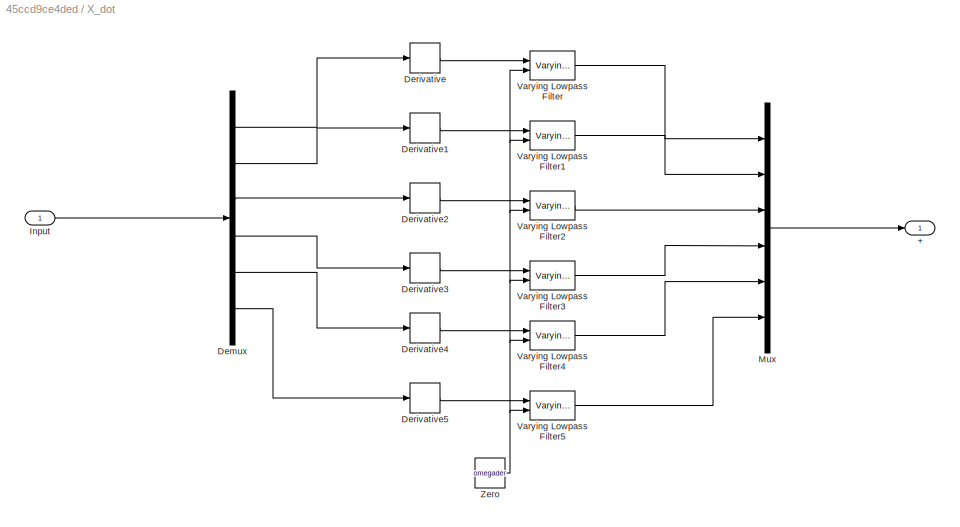
BLOCK [SubSystem] X_dot
  NameLocation = top
  Ports = [1, 1]
  RequestExecContextInheritance = off
BLOCK [Outport] X_dot/+
BLOCK [Demux] X_dot/Demux
  Outputs = 6
  Ports = [1, 6]
BLOCK [Derivative] X_dot/Derivative
BLOCK [Derivative] X_dot/Derivative1
BLOCK [Derivative] X_dot/Derivative2
BLOCK [Derivative] X_dot/Derivative3
BLOCK [Derivative] X_dot/Derivative4
BLOCK [Derivative] X_dot/Derivative5
BLOCK [Inport] X_dot/Input
BLOCK [Mux] X_dot/Mux
  DisplayOption = bar
  Inputs = 6
  Ports = [6, 1]
BLOCK [Reference] X_dot/Varying Lowpass Filter  REF=cstblocks/Linear Parameter Varying/Varying Lowpass Filter
  Ports = [2, 1]
  SourceBlock = cstblocks/Linear Parameter Varying/Varying Lowpass Filter
  SourceProductBaseCode = CT
  SourceType = Varying Lowpass Filter
BLOCK [Reference] X_dot/Varying Lowpass Filter1  REF=cstblocks/Linear Parameter Varying/Varying Lowpass Filter
  Ports = [2, 1]
  SourceBlock = cstblocks/Linear Parameter Varying/Varying Lowpass Filter
  SourceProductBaseCode = CT
  SourceType = Varying Lowpass Filter
BLOCK [Reference] X_dot/Varying Lowpass Filter2  REF=cstblocks/Linear Parameter Varying/Varying Lowpass Filter
  Ports = [2, 1]
  SourceBlock = cstblocks/Linear Parameter Varying/Varying Lowpass Filter
  SourceProductBaseCode = CT
  SourceType = Varying Lowpass Filter
BLOCK [Reference] X_dot/Varying Lowpass Filter3  REF=cstblocks/Linear Parameter Varying/Varying Lowpass Filter
  Ports = [2, 1]
  SourceBlock = cstblocks/Linear Parameter Varying/Varying Lowpass Filter
  SourceProductBaseCode = CT
  SourceType = Varying Lowpass Filter
BLOCK [Reference] X_dot/Varying Lowpass Filter4  REF=cstblocks/Linear Parameter Varying/Varying Lowpass Filter
  Ports = [2, 1]
  SourceBlock = cstblocks/Linear Parameter Varying/Varying Lowpass Filter
  SourceProductBaseCode = CT
  SourceType = Varying Lowpass Filter
BLOCK [Reference] X_dot/Varying Lowpass Filter5  REF=cstblocks/Linear Parameter Varying/Varying Lowpass Filter
  Ports = [2, 1]
  SourceBlock = cstblocks/Linear Parameter Varying/Varying Lowpass Filter
  SourceProductBaseCode = CT
  SourceType = Varying Lowpass Filter
BLOCK [Constant] X_dot/Zero
  OutDataTypeStr = Inherit: Inherit via back propagation
  Value = omegader
BLOCK [SubSystem] gain 1//a2
  Ports = [1, 1]
  RequestExecContextInheritance = off
BLOCK [Gain] gain 1//a2/1//a
  Gain = 1/a
BLOCK [Gain] gain 1//a2/1//a1
  Gain = 1/a
BLOCK [Gain] gain 1//a2/1//a2
  Gain = 1/a
BLOCK [Gain] gain 1//a2/1//a3
  Gain = 1/a
BLOCK [Gain] gain 1//a2/1//a4
  Gain = 1/a
BLOCK [Gain] gain 1//a2/1//a5
  Gain = 1/a
BLOCK [Demux] gain 1//a2/Demux
  Outputs = 6
  Ports = [1, 6]
BLOCK [Mux] gain 1//a2/Mux
  DisplayOption = bar
  Inputs = 6
  Ports = [6, 1]
BLOCK [Inport] gain 1//a2/u
BLOCK [Outport] gain 1//a2/u//a
NET Adjency/Demux:1 -> Adjency/Sum1:1, Adjency/Sum:1
NET Adjency/Demux:2 -> Adjency/Mux:4, Adjency/Sum1:2, Adjency/Sum2:1
NET Adjency/Demux:3 -> Adjency/Mux:5, Adjency/Sum2:2, Adjency/Sum:2
LINE Adjency/Demux:4 -> Adjency/Sum2:3
LINE Adjency/Demux:5 -> Adjency/Sum2:4
LINE Adjency/Demux:6 -> Adjency/Terminator:1
LINE Adjency/Input:1 -> Adjency/Demux:1
LINE Adjency/Mux:1 -> Adjency/Output:1
LINE Adjency/Sum1:1 -> Adjency/Mux:3
LINE Adjency/Sum2:1 -> Adjency/Mux:6
LINE Adjency/Sum:1 -> Adjency/Mux:2
LINE Adjency/Zero:1 -> Adjency/Mux:1
LINE Adjency:1 -> Summation:2
LINE B/Input:1 -> B/Mux:1
LINE B/Mux:1 -> B/Output:1
NET B/Zero:1 -> B/Mux:2, B/Mux:3, B/Mux:4, B/Mux:5, B/Mux:6
LINE B:1 -> Summation:1
LINE C(s)/C(s)1/DSRdelayV1/Gain1:1 -> C(s)/C(s)1/DSRdelayV1/Transfer Fcn1:1
LINE C(s)/C(s)1/DSRdelayV1/Gain:1 -> C(s)/C(s)1/DSRdelayV1/Transfer Fcn:1
NET C(s)/C(s)1/DSRdelayV1/Input:1 -> C(s)/C(s)1/DSRdelayV1/Sum:2, C(s)/C(s)1/DSRdelayV1/Transport Delay:1
LINE C(s)/C(s)1/DSRdelayV1/Sum13:1 -> C(s)/C(s)1/DSRdelayV1/Gain1:1
LINE C(s)/C(s)1/DSRdelayV1/Sum:1 -> C(s)/C(s)1/DSRdelayV1/Gain:1
LINE C(s)/C(s)1/DSRdelayV1/Transfer Fcn1:1 -> C(s)/C(s)1/DSRdelayV1/est:1
NET C(s)/C(s)1/DSRdelayV1/Transfer Fcn:1 -> C(s)/C(s)1/DSRdelayV1/Sum13:2, C(s)/C(s)1/DSRdelayV1/Transport Delay13:1
LINE C(s)/C(s)1/DSRdelayV1/Transport Delay13:1 -> C(s)/C(s)1/DSRdelayV1/Sum13:1
LINE C(s)/C(s)1/DSRdelayV1/Transport Delay:1 -> C(s)/C(s)1/DSRdelayV1/Sum:1
LINE C(s)/C(s)1/DSRdelayV1:1 -> C(s)/C(s)1/Sum:1
LINE C(s)/C(s)1/Derivative:1 -> C(s)/C(s)1/Varying Lowpass Filter:1
LINE C(s)/C(s)1/Gain1:1 -> C(s)/C(s)1/Sum:2
LINE C(s)/C(s)1/Gain3:1 -> C(s)/C(s)1/Derivative:1
LINE C(s)/C(s)1/Gain:1 -> C(s)/C(s)1/DSRdelayV1:1
NET C(s)/C(s)1/R-F:1 -> C(s)/C(s)1/Gain1:1, C(s)/C(s)1/Gain3:1, C(s)/C(s)1/Gain:1
LINE C(s)/C(s)1/Sum:1 -> C(s)/C(s)1/Out1:1
LINE C(s)/C(s)1/Varying Lowpass Filter:1 -> C(s)/C(s)1/Sum:3
LINE C(s)/C(s)1/Zero:1 -> C(s)/C(s)1/Varying Lowpass Filter:2
LINE C(s)/C(s)1:1 -> C(s)/Mux:1
LINE C(s)/C(s)2/DSRdelayV1/Gain1:1 -> C(s)/C(s)2/DSRdelayV1/Transfer Fcn1:1
LINE C(s)/C(s)2/DSRdelayV1/Gain:1 -> C(s)/C(s)2/DSRdelayV1/Transfer Fcn:1
NET C(s)/C(s)2/DSRdelayV1/Input:1 -> C(s)/C(s)2/DSRdelayV1/Sum:2, C(s)/C(s)2/DSRdelayV1/Transport Delay:1
LINE C(s)/C(s)2/DSRdelayV1/Sum13:1 -> C(s)/C(s)2/DSRdelayV1/Gain1:1
LINE C(s)/C(s)2/DSRdelayV1/Sum:1 -> C(s)/C(s)2/DSRdelayV1/Gain:1
LINE C(s)/C(s)2/DSRdelayV1/Transfer Fcn1:1 -> C(s)/C(s)2/DSRdelayV1/est:1
NET C(s)/C(s)2/DSRdelayV1/Transfer Fcn:1 -> C(s)/C(s)2/DSRdelayV1/Sum13:2, C(s)/C(s)2/DSRdelayV1/Transport Delay13:1
LINE C(s)/C(s)2/DSRdelayV1/Transport Delay13:1 -> C(s)/C(s)2/DSRdelayV1/Sum13:1
LINE C(s)/C(s)2/DSRdelayV1/Transport Delay:1 -> C(s)/C(s)2/DSRdelayV1/Sum:1
LINE C(s)/C(s)2/DSRdelayV1:1 -> C(s)/C(s)2/Sum:1
LINE C(s)/C(s)2/Derivative:1 -> C(s)/C(s)2/Varying Lowpass Filter:1
LINE C(s)/C(s)2/Gain1:1 -> C(s)/C(s)2/Sum:2
LINE C(s)/C(s)2/Gain3:1 -> C(s)/C(s)2/Derivative:1
LINE C(s)/C(s)2/Gain:1 -> C(s)/C(s)2/DSRdelayV1:1
NET C(s)/C(s)2/R-F:1 -> C(s)/C(s)2/Gain1:1, C(s)/C(s)2/Gain3:1, C(s)/C(s)2/Gain:1
LINE C(s)/C(s)2/Sum:1 -> C(s)/C(s)2/Out1:1
LINE C(s)/C(s)2/Varying Lowpass Filter:1 -> C(s)/C(s)2/Sum:3
LINE C(s)/C(s)2/Zero:1 -> C(s)/C(s)2/Varying Lowpass Filter:2
LINE C(s)/C(s)2:1 -> C(s)/Mux:2
LINE C(s)/C(s)3/DSRdelayV1/Gain1:1 -> C(s)/C(s)3/DSRdelayV1/Transfer Fcn1:1
LINE C(s)/C(s)3/DSRdelayV1/Gain:1 -> C(s)/C(s)3/DSRdelayV1/Transfer Fcn:1
NET C(s)/C(s)3/DSRdelayV1/Input:1 -> C(s)/C(s)3/DSRdelayV1/Sum:2, C(s)/C(s)3/DSRdelayV1/Transport Delay:1
LINE C(s)/C(s)3/DSRdelayV1/Sum13:1 -> C(s)/C(s)3/DSRdelayV1/Gain1:1
LINE C(s)/C(s)3/DSRdelayV1/Sum:1 -> C(s)/C(s)3/DSRdelayV1/Gain:1
LINE C(s)/C(s)3/DSRdelayV1/Transfer Fcn1:1 -> C(s)/C(s)3/DSRdelayV1/est:1
NET C(s)/C(s)3/DSRdelayV1/Transfer Fcn:1 -> C(s)/C(s)3/DSRdelayV1/Sum13:2, C(s)/C(s)3/DSRdelayV1/Transport Delay13:1
LINE C(s)/C(s)3/DSRdelayV1/Transport Delay13:1 -> C(s)/C(s)3/DSRdelayV1/Sum13:1
LINE C(s)/C(s)3/DSRdelayV1/Transport Delay:1 -> C(s)/C(s)3/DSRdelayV1/Sum:1
LINE C(s)/C(s)3/DSRdelayV1:1 -> C(s)/C(s)3/Sum:1
LINE C(s)/C(s)3/Derivative:1 -> C(s)/C(s)3/Varying Lowpass Filter:1
LINE C(s)/C(s)3/Gain1:1 -> C(s)/C(s)3/Sum:2
LINE C(s)/C(s)3/Gain3:1 -> C(s)/C(s)3/Derivative:1
LINE C(s)/C(s)3/Gain:1 -> C(s)/C(s)3/DSRdelayV1:1
NET C(s)/C(s)3/R-F:1 -> C(s)/C(s)3/Gain1:1, C(s)/C(s)3/Gain3:1, C(s)/C(s)3/Gain:1
LINE C(s)/C(s)3/Sum:1 -> C(s)/C(s)3/Out1:1
LINE C(s)/C(s)3/Varying Lowpass Filter:1 -> C(s)/C(s)3/Sum:3
LINE C(s)/C(s)3/Zero:1 -> C(s)/C(s)3/Varying Lowpass Filter:2
LINE C(s)/C(s)3:1 -> C(s)/Mux:3
LINE C(s)/C(s)4/DSRdelayV1/Gain1:1 -> C(s)/C(s)4/DSRdelayV1/Transfer Fcn1:1
LINE C(s)/C(s)4/DSRdelayV1/Gain:1 -> C(s)/C(s)4/DSRdelayV1/Transfer Fcn:1
NET C(s)/C(s)4/DSRdelayV1/Input:1 -> C(s)/C(s)4/DSRdelayV1/Sum:2, C(s)/C(s)4/DSRdelayV1/Transport Delay:1
LINE C(s)/C(s)4/DSRdelayV1/Sum13:1 -> C(s)/C(s)4/DSRdelayV1/Gain1:1
LINE C(s)/C(s)4/DSRdelayV1/Sum:1 -> C(s)/C(s)4/DSRdelayV1/Gain:1
LINE C(s)/C(s)4/DSRdelayV1/Transfer Fcn1:1 -> C(s)/C(s)4/DSRdelayV1/est:1
NET C(s)/C(s)4/DSRdelayV1/Transfer Fcn:1 -> C(s)/C(s)4/DSRdelayV1/Sum13:2, C(s)/C(s)4/DSRdelayV1/Transport Delay13:1
LINE C(s)/C(s)4/DSRdelayV1/Transport Delay13:1 -> C(s)/C(s)4/DSRdelayV1/Sum13:1
LINE C(s)/C(s)4/DSRdelayV1/Transport Delay:1 -> C(s)/C(s)4/DSRdelayV1/Sum:1
LINE C(s)/C(s)4/DSRdelayV1:1 -> C(s)/C(s)4/Sum:1
LINE C(s)/C(s)4/Derivative:1 -> C(s)/C(s)4/Varying Lowpass Filter:1
LINE C(s)/C(s)4/Gain1:1 -> C(s)/C(s)4/Sum:2
LINE C(s)/C(s)4/Gain3:1 -> C(s)/C(s)4/Derivative:1
LINE C(s)/C(s)4/Gain:1 -> C(s)/C(s)4/DSRdelayV1:1
NET C(s)/C(s)4/R-F:1 -> C(s)/C(s)4/Gain1:1, C(s)/C(s)4/Gain3:1, C(s)/C(s)4/Gain:1
LINE C(s)/C(s)4/Sum:1 -> C(s)/C(s)4/Out1:1
LINE C(s)/C(s)4/Varying Lowpass Filter:1 -> C(s)/C(s)4/Sum:3
LINE C(s)/C(s)4/Zero:1 -> C(s)/C(s)4/Varying Lowpass Filter:2
LINE C(s)/C(s)4:1 -> C(s)/Mux:4
LINE C(s)/C(s)5/DSRdelayV1/Gain1:1 -> C(s)/C(s)5/DSRdelayV1/Transfer Fcn1:1
LINE C(s)/C(s)5/DSRdelayV1/Gain:1 -> C(s)/C(s)5/DSRdelayV1/Transfer Fcn:1
NET C(s)/C(s)5/DSRdelayV1/Input:1 -> C(s)/C(s)5/DSRdelayV1/Sum:2, C(s)/C(s)5/DSRdelayV1/Transport Delay:1
LINE C(s)/C(s)5/DSRdelayV1/Sum13:1 -> C(s)/C(s)5/DSRdelayV1/Gain1:1
LINE C(s)/C(s)5/DSRdelayV1/Sum:1 -> C(s)/C(s)5/DSRdelayV1/Gain:1
LINE C(s)/C(s)5/DSRdelayV1/Transfer Fcn1:1 -> C(s)/C(s)5/DSRdelayV1/est:1
NET C(s)/C(s)5/DSRdelayV1/Transfer Fcn:1 -> C(s)/C(s)5/DSRdelayV1/Sum13:2, C(s)/C(s)5/DSRdelayV1/Transport Delay13:1
LINE C(s)/C(s)5/DSRdelayV1/Transport Delay13:1 -> C(s)/C(s)5/DSRdelayV1/Sum13:1
LINE C(s)/C(s)5/DSRdelayV1/Transport Delay:1 -> C(s)/C(s)5/DSRdelayV1/Sum:1
LINE C(s)/C(s)5/DSRdelayV1:1 -> C(s)/C(s)5/Sum:1
LINE C(s)/C(s)5/Derivative:1 -> C(s)/C(s)5/Varying Lowpass Filter:1
LINE C(s)/C(s)5/Gain1:1 -> C(s)/C(s)5/Sum:2
LINE C(s)/C(s)5/Gain3:1 -> C(s)/C(s)5/Derivative:1
LINE C(s)/C(s)5/Gain:1 -> C(s)/C(s)5/DSRdelayV1:1
NET C(s)/C(s)5/R-F:1 -> C(s)/C(s)5/Gain1:1, C(s)/C(s)5/Gain3:1, C(s)/C(s)5/Gain:1
LINE C(s)/C(s)5/Sum:1 -> C(s)/C(s)5/Out1:1
LINE C(s)/C(s)5/Varying Lowpass Filter:1 -> C(s)/C(s)5/Sum:3
LINE C(s)/C(s)5/Zero:1 -> C(s)/C(s)5/Varying Lowpass Filter:2
LINE C(s)/C(s)5:1 -> C(s)/Mux:5
LINE C(s)/C(s)6/DSRdelayV1/Gain1:1 -> C(s)/C(s)6/DSRdelayV1/Transfer Fcn1:1
LINE C(s)/C(s)6/DSRdelayV1/Gain:1 -> C(s)/C(s)6/DSRdelayV1/Transfer Fcn:1
NET C(s)/C(s)6/DSRdelayV1/Input:1 -> C(s)/C(s)6/DSRdelayV1/Sum:2, C(s)/C(s)6/DSRdelayV1/Transport Delay:1
LINE C(s)/C(s)6/DSRdelayV1/Sum13:1 -> C(s)/C(s)6/DSRdelayV1/Gain1:1
LINE C(s)/C(s)6/DSRdelayV1/Sum:1 -> C(s)/C(s)6/DSRdelayV1/Gain:1
LINE C(s)/C(s)6/DSRdelayV1/Transfer Fcn1:1 -> C(s)/C(s)6/DSRdelayV1/est:1
NET C(s)/C(s)6/DSRdelayV1/Transfer Fcn:1 -> C(s)/C(s)6/DSRdelayV1/Sum13:2, C(s)/C(s)6/DSRdelayV1/Transport Delay13:1
LINE C(s)/C(s)6/DSRdelayV1/Transport Delay13:1 -> C(s)/C(s)6/DSRdelayV1/Sum13:1
LINE C(s)/C(s)6/DSRdelayV1/Transport Delay:1 -> C(s)/C(s)6/DSRdelayV1/Sum:1
LINE C(s)/C(s)6/DSRdelayV1:1 -> C(s)/C(s)6/Sum:1
LINE C(s)/C(s)6/Derivative:1 -> C(s)/C(s)6/Varying Lowpass Filter:1
LINE C(s)/C(s)6/Gain1:1 -> C(s)/C(s)6/Sum:2
LINE C(s)/C(s)6/Gain3:1 -> C(s)/C(s)6/Derivative:1
LINE C(s)/C(s)6/Gain:1 -> C(s)/C(s)6/DSRdelayV1:1
NET C(s)/C(s)6/R-F:1 -> C(s)/C(s)6/Gain1:1, C(s)/C(s)6/Gain3:1, C(s)/C(s)6/Gain:1
LINE C(s)/C(s)6/Sum:1 -> C(s)/C(s)6/Out1:1
LINE C(s)/C(s)6/Varying Lowpass Filter:1 -> C(s)/C(s)6/Sum:3
LINE C(s)/C(s)6/Zero:1 -> C(s)/C(s)6/Varying Lowpass Filter:2
LINE C(s)/C(s)6:1 -> C(s)/Mux:6
LINE C(s)/Demux:1 -> C(s)/C(s)1:1
LINE C(s)/Demux:2 -> C(s)/C(s)2:1
LINE C(s)/Demux:3 -> C(s)/C(s)3:1
LINE C(s)/Demux:4 -> C(s)/C(s)4:1
LINE C(s)/Demux:5 -> C(s)/C(s)5:1
LINE C(s)/Demux:6 -> C(s)/C(s)6:1
LINE C(s)/Mux:1 -> C(s)/Output:1
LINE C(s)/R-F:1 -> C(s)/Demux:1
LINE C(s):1 -> Summation2:1
LINE CDOB/Acc.:1 -> CDOB/Demux1:1
LINE CDOB/Demux1:1 -> CDOB/ND:2
LINE CDOB/Demux1:2 -> CDOB/ND1:2
LINE CDOB/Demux1:3 -> CDOB/ND2:2
LINE CDOB/Demux1:4 -> CDOB/ND3:2
LINE CDOB/Demux1:5 -> CDOB/ND4:2
LINE CDOB/Demux1:6 -> CDOB/ND5:2
LINE CDOB/Demux:1 -> CDOB/ND:1
LINE CDOB/Demux:2 -> CDOB/ND1:1
LINE CDOB/Demux:3 -> CDOB/ND2:1
LINE CDOB/Demux:4 -> CDOB/ND3:1
LINE CDOB/Demux:5 -> CDOB/ND4:1
LINE CDOB/Demux:6 -> CDOB/ND5:1
LINE CDOB/Mux:1 -> CDOB/FeedBack:1
LINE CDOB/ND/Acc.:1 -> CDOB/ND/CDOB1:2
LINE CDOB/ND/CDOB1/Acc.:1 -> CDOB/ND/CDOB1/Sum8:3
NET CDOB/ND/CDOB1/Derivative:1 -> CDOB/ND/CDOB1/Gain:1, CDOB/ND/CDOB1/Sum8:2
NET CDOB/ND/CDOB1/Gain:1 -> CDOB/ND/CDOB1/Sum8:1, CDOB/ND/CDOB1/Sum:1
LINE CDOB/ND/CDOB1/Sum8:1 -> CDOB/ND/CDOB1/Transfer Fcn2:1
LINE CDOB/ND/CDOB1/Sum:1 -> CDOB/ND/CDOB1/Dobsv:1
LINE CDOB/ND/CDOB1/Transfer Fcn2:1 -> CDOB/ND/CDOB1/Sum:2
LINE CDOB/ND/CDOB1/XRes:1 -> CDOB/ND/CDOB1/Derivative:1
LINE CDOB/ND/CDOB1:1 -> CDOB/ND/TimeDelayComp:2
LINE CDOB/ND/TimeDelayComp/DelayCom:1 -> CDOB/ND/TimeDelayComp/Sum8:2
LINE CDOB/ND/TimeDelayComp/Dobsv:1 -> CDOB/ND/TimeDelayComp/DelayCom:1
LINE CDOB/ND/TimeDelayComp/Sum8:1 -> CDOB/ND/TimeDelayComp/FeedBack:1
LINE CDOB/ND/TimeDelayComp/SysOut:1 -> CDOB/ND/TimeDelayComp/Sum8:1
LINE CDOB/ND/TimeDelayComp:1 -> CDOB/ND/FeedBack:1
NET CDOB/ND/XRes:1 -> CDOB/ND/CDOB1:1, CDOB/ND/TimeDelayComp:1
LINE CDOB/ND1/Acc.:1 -> CDOB/ND1/CDOB1:2
LINE CDOB/ND1/CDOB1/Acc.:1 -> CDOB/ND1/CDOB1/Sum8:3
NET CDOB/ND1/CDOB1/Derivative:1 -> CDOB/ND1/CDOB1/Gain:1, CDOB/ND1/CDOB1/Sum8:2
NET CDOB/ND1/CDOB1/Gain:1 -> CDOB/ND1/CDOB1/Sum8:1, CDOB/ND1/CDOB1/Sum:1
LINE CDOB/ND1/CDOB1/Sum8:1 -> CDOB/ND1/CDOB1/Transfer Fcn2:1
LINE CDOB/ND1/CDOB1/Sum:1 -> CDOB/ND1/CDOB1/Dobsv:1
LINE CDOB/ND1/CDOB1/Transfer Fcn2:1 -> CDOB/ND1/CDOB1/Sum:2
LINE CDOB/ND1/CDOB1/XRes:1 -> CDOB/ND1/CDOB1/Derivative:1
LINE CDOB/ND1/CDOB1:1 -> CDOB/ND1/TimeDelayComp:2
LINE CDOB/ND1/TimeDelayComp/DelayCom:1 -> CDOB/ND1/TimeDelayComp/Sum8:2
LINE CDOB/ND1/TimeDelayComp/Dobsv:1 -> CDOB/ND1/TimeDelayComp/DelayCom:1
LINE CDOB/ND1/TimeDelayComp/Sum8:1 -> CDOB/ND1/TimeDelayComp/FeedBack:1
LINE CDOB/ND1/TimeDelayComp/SysOut:1 -> CDOB/ND1/TimeDelayComp/Sum8:1
LINE CDOB/ND1/TimeDelayComp:1 -> CDOB/ND1/FeedBack:1
NET CDOB/ND1/XRes:1 -> CDOB/ND1/CDOB1:1, CDOB/ND1/TimeDelayComp:1
LINE CDOB/ND1:1 -> CDOB/Mux:2
LINE CDOB/ND2/Acc.:1 -> CDOB/ND2/CDOB1:2
LINE CDOB/ND2/CDOB1/Acc.:1 -> CDOB/ND2/CDOB1/Sum8:3
NET CDOB/ND2/CDOB1/Derivative:1 -> CDOB/ND2/CDOB1/Gain:1, CDOB/ND2/CDOB1/Sum8:2
NET CDOB/ND2/CDOB1/Gain:1 -> CDOB/ND2/CDOB1/Sum8:1, CDOB/ND2/CDOB1/Sum:1
LINE CDOB/ND2/CDOB1/Sum8:1 -> CDOB/ND2/CDOB1/Transfer Fcn2:1
LINE CDOB/ND2/CDOB1/Sum:1 -> CDOB/ND2/CDOB1/Dobsv:1
LINE CDOB/ND2/CDOB1/Transfer Fcn2:1 -> CDOB/ND2/CDOB1/Sum:2
LINE CDOB/ND2/CDOB1/XRes:1 -> CDOB/ND2/CDOB1/Derivative:1
LINE CDOB/ND2/CDOB1:1 -> CDOB/ND2/TimeDelayComp:2
LINE CDOB/ND2/TimeDelayComp/DelayCom:1 -> CDOB/ND2/TimeDelayComp/Sum8:2
LINE CDOB/ND2/TimeDelayComp/Dobsv:1 -> CDOB/ND2/TimeDelayComp/DelayCom:1
LINE CDOB/ND2/TimeDelayComp/Sum8:1 -> CDOB/ND2/TimeDelayComp/FeedBack:1
LINE CDOB/ND2/TimeDelayComp/SysOut:1 -> CDOB/ND2/TimeDelayComp/Sum8:1
LINE CDOB/ND2/TimeDelayComp:1 -> CDOB/ND2/FeedBack:1
NET CDOB/ND2/XRes:1 -> CDOB/ND2/CDOB1:1, CDOB/ND2/TimeDelayComp:1
LINE CDOB/ND2:1 -> CDOB/Mux:3
LINE CDOB/ND3/Acc.:1 -> CDOB/ND3/CDOB1:2
LINE CDOB/ND3/CDOB1/Acc.:1 -> CDOB/ND3/CDOB1/Sum8:3
NET CDOB/ND3/CDOB1/Derivative:1 -> CDOB/ND3/CDOB1/Gain:1, CDOB/ND3/CDOB1/Sum8:2
NET CDOB/ND3/CDOB1/Gain:1 -> CDOB/ND3/CDOB1/Sum8:1, CDOB/ND3/CDOB1/Sum:1
LINE CDOB/ND3/CDOB1/Sum8:1 -> CDOB/ND3/CDOB1/Transfer Fcn2:1
LINE CDOB/ND3/CDOB1/Sum:1 -> CDOB/ND3/CDOB1/Dobsv:1
LINE CDOB/ND3/CDOB1/Transfer Fcn2:1 -> CDOB/ND3/CDOB1/Sum:2
LINE CDOB/ND3/CDOB1/XRes:1 -> CDOB/ND3/CDOB1/Derivative:1
LINE CDOB/ND3/CDOB1:1 -> CDOB/ND3/TimeDelayComp:2
LINE CDOB/ND3/TimeDelayComp/DelayCom:1 -> CDOB/ND3/TimeDelayComp/Sum8:2
LINE CDOB/ND3/TimeDelayComp/Dobsv:1 -> CDOB/ND3/TimeDelayComp/DelayCom:1
LINE CDOB/ND3/TimeDelayComp/Sum8:1 -> CDOB/ND3/TimeDelayComp/FeedBack:1
LINE CDOB/ND3/TimeDelayComp/SysOut:1 -> CDOB/ND3/TimeDelayComp/Sum8:1
LINE CDOB/ND3/TimeDelayComp:1 -> CDOB/ND3/FeedBack:1
NET CDOB/ND3/XRes:1 -> CDOB/ND3/CDOB1:1, CDOB/ND3/TimeDelayComp:1
LINE CDOB/ND3:1 -> CDOB/Mux:4
LINE CDOB/ND4/Acc.:1 -> CDOB/ND4/CDOB1:2
LINE CDOB/ND4/CDOB1/Acc.:1 -> CDOB/ND4/CDOB1/Sum8:3
NET CDOB/ND4/CDOB1/Derivative:1 -> CDOB/ND4/CDOB1/Gain:1, CDOB/ND4/CDOB1/Sum8:2
NET CDOB/ND4/CDOB1/Gain:1 -> CDOB/ND4/CDOB1/Sum8:1, CDOB/ND4/CDOB1/Sum:1
LINE CDOB/ND4/CDOB1/Sum8:1 -> CDOB/ND4/CDOB1/Transfer Fcn2:1
LINE CDOB/ND4/CDOB1/Sum:1 -> CDOB/ND4/CDOB1/Dobsv:1
LINE CDOB/ND4/CDOB1/Transfer Fcn2:1 -> CDOB/ND4/CDOB1/Sum:2
LINE CDOB/ND4/CDOB1/XRes:1 -> CDOB/ND4/CDOB1/Derivative:1
LINE CDOB/ND4/CDOB1:1 -> CDOB/ND4/TimeDelayComp:2
LINE CDOB/ND4/TimeDelayComp/DelayCom:1 -> CDOB/ND4/TimeDelayComp/Sum8:2
LINE CDOB/ND4/TimeDelayComp/Dobsv:1 -> CDOB/ND4/TimeDelayComp/DelayCom:1
LINE CDOB/ND4/TimeDelayComp/Sum8:1 -> CDOB/ND4/TimeDelayComp/FeedBack:1
LINE CDOB/ND4/TimeDelayComp/SysOut:1 -> CDOB/ND4/TimeDelayComp/Sum8:1
LINE CDOB/ND4/TimeDelayComp:1 -> CDOB/ND4/FeedBack:1
NET CDOB/ND4/XRes:1 -> CDOB/ND4/CDOB1:1, CDOB/ND4/TimeDelayComp:1
LINE CDOB/ND4:1 -> CDOB/Mux:5
LINE CDOB/ND5/Acc.:1 -> CDOB/ND5/CDOB1:2
LINE CDOB/ND5/CDOB1/Acc.:1 -> CDOB/ND5/CDOB1/Sum8:3
NET CDOB/ND5/CDOB1/Derivative:1 -> CDOB/ND5/CDOB1/Gain:1, CDOB/ND5/CDOB1/Sum8:2
NET CDOB/ND5/CDOB1/Gain:1 -> CDOB/ND5/CDOB1/Sum8:1, CDOB/ND5/CDOB1/Sum:1
LINE CDOB/ND5/CDOB1/Sum8:1 -> CDOB/ND5/CDOB1/Transfer Fcn2:1
LINE CDOB/ND5/CDOB1/Sum:1 -> CDOB/ND5/CDOB1/Dobsv:1
LINE CDOB/ND5/CDOB1/Transfer Fcn2:1 -> CDOB/ND5/CDOB1/Sum:2
LINE CDOB/ND5/CDOB1/XRes:1 -> CDOB/ND5/CDOB1/Derivative:1
LINE CDOB/ND5/CDOB1:1 -> CDOB/ND5/TimeDelayComp:2
LINE CDOB/ND5/TimeDelayComp/DelayCom:1 -> CDOB/ND5/TimeDelayComp/Sum8:2
LINE CDOB/ND5/TimeDelayComp/Dobsv:1 -> CDOB/ND5/TimeDelayComp/DelayCom:1
LINE CDOB/ND5/TimeDelayComp/Sum8:1 -> CDOB/ND5/TimeDelayComp/FeedBack:1
LINE CDOB/ND5/TimeDelayComp/SysOut:1 -> CDOB/ND5/TimeDelayComp/Sum8:1
LINE CDOB/ND5/TimeDelayComp:1 -> CDOB/ND5/FeedBack:1
NET CDOB/ND5/XRes:1 -> CDOB/ND5/CDOB1:1, CDOB/ND5/TimeDelayComp:1
LINE CDOB/ND5:1 -> CDOB/Mux:6
LINE CDOB/ND:1 -> CDOB/Mux:1
LINE CDOB/XRes:1 -> CDOB/Demux:1
LINE CDOB:1 -> Degree:1
LINE DSRdelayV2/Gain1:1 -> DSRdelayV2/Transfer Fcn1:1
LINE DSRdelayV2/Gain:1 -> DSRdelayV2/Transfer Fcn:1
NET DSRdelayV2/Input:1 -> DSRdelayV2/Sum:2, DSRdelayV2/Transport Delay:1
LINE DSRdelayV2/Sum13:1 -> DSRdelayV2/Gain1:1
LINE DSRdelayV2/Sum:1 -> DSRdelayV2/Gain:1
LINE DSRdelayV2/Transfer Fcn1:1 -> DSRdelayV2/est:1
NET DSRdelayV2/Transfer Fcn:1 -> DSRdelayV2/Sum13:2, DSRdelayV2/Transport Delay13:1
LINE DSRdelayV2/Transport Delay13:1 -> DSRdelayV2/Sum13:1
LINE DSRdelayV2/Transport Delay:1 -> DSRdelayV2/Sum:1
LINE DSRdelayV2:1 -> Summation2:2
LINE Degree/Demux:1 -> Degree/Mux:1
LINE Degree/Demux:2 -> Degree/Gain:1
LINE Degree/Demux:3 -> Degree/Gain1:1
LINE Degree/Demux:4 -> Degree/Mux:4
LINE Degree/Demux:5 -> Degree/Mux:5
LINE Degree/Demux:6 -> Degree/Gain4:1
LINE Degree/Gain1:1 -> Degree/Mux:3
LINE Degree/Gain4:1 -> Degree/Mux:6
LINE Degree/Gain:1 -> Degree/Mux:2
LINE Degree/Input:1 -> Degree/Demux:1
LINE Degree/Mux:1 -> Degree/Output:1
LINE Degree:1 -> Summation1:2
LINE F(s)/DSRdelayV1/Gain1:1 -> F(s)/DSRdelayV1/Transfer Fcn1:1
LINE F(s)/DSRdelayV1/Gain:1 -> F(s)/DSRdelayV1/Transfer Fcn:1
NET F(s)/DSRdelayV1/Input:1 -> F(s)/DSRdelayV1/Sum:2, F(s)/DSRdelayV1/Transport Delay:1
LINE F(s)/DSRdelayV1/Sum13:1 -> F(s)/DSRdelayV1/Gain1:1
LINE F(s)/DSRdelayV1/Sum:1 -> F(s)/DSRdelayV1/Gain:1
LINE F(s)/DSRdelayV1/Transfer Fcn1:1 -> F(s)/DSRdelayV1/est:1
NET F(s)/DSRdelayV1/Transfer Fcn:1 -> F(s)/DSRdelayV1/Sum13:2, F(s)/DSRdelayV1/Transport Delay13:1
LINE F(s)/DSRdelayV1/Transport Delay13:1 -> F(s)/DSRdelayV1/Sum13:1
LINE F(s)/DSRdelayV1/Transport Delay:1 -> F(s)/DSRdelayV1/Sum:1
LINE F(s)/DSRdelayV1:1 -> F(s)/Mux:2
NET F(s)/DSRdelayV2/Gain1:1 -> F(s)/DSRdelayV2/Scope:4, F(s)/DSRdelayV2/Transfer Fcn1:1
NET F(s)/DSRdelayV2/Gain:1 -> F(s)/DSRdelayV2/Scope:2, F(s)/DSRdelayV2/Transfer Fcn:1
NET F(s)/DSRdelayV2/Input:1 -> F(s)/DSRdelayV2/Scope:1, F(s)/DSRdelayV2/Sum:2, F(s)/DSRdelayV2/Transport Delay:1
LINE F(s)/DSRdelayV2/Sum13:1 -> F(s)/DSRdelayV2/Gain1:1
LINE F(s)/DSRdelayV2/Sum:1 -> F(s)/DSRdelayV2/Gain:1
NET F(s)/DSRdelayV2/Transfer Fcn1:1 -> F(s)/DSRdelayV2/Scope:5, F(s)/DSRdelayV2/est:1
NET F(s)/DSRdelayV2/Transfer Fcn:1 -> F(s)/DSRdelayV2/Scope:3, F(s)/DSRdelayV2/Sum13:2, F(s)/DSRdelayV2/Transport Delay13:1
LINE F(s)/DSRdelayV2/Transport Delay13:1 -> F(s)/DSRdelayV2/Sum13:1
LINE F(s)/DSRdelayV2/Transport Delay:1 -> F(s)/DSRdelayV2/Sum:1
LINE F(s)/DSRdelayV2:1 -> F(s)/Mux:1
LINE F(s)/DSRdelayV3/Gain1:1 -> F(s)/DSRdelayV3/Transfer Fcn1:1
LINE F(s)/DSRdelayV3/Gain:1 -> F(s)/DSRdelayV3/Transfer Fcn:1
NET F(s)/DSRdelayV3/Input:1 -> F(s)/DSRdelayV3/Sum:2, F(s)/DSRdelayV3/Transport Delay:1
LINE F(s)/DSRdelayV3/Sum13:1 -> F(s)/DSRdelayV3/Gain1:1
LINE F(s)/DSRdelayV3/Sum:1 -> F(s)/DSRdelayV3/Gain:1
LINE F(s)/DSRdelayV3/Transfer Fcn1:1 -> F(s)/DSRdelayV3/est:1
NET F(s)/DSRdelayV3/Transfer Fcn:1 -> F(s)/DSRdelayV3/Sum13:2, F(s)/DSRdelayV3/Transport Delay13:1
LINE F(s)/DSRdelayV3/Transport Delay13:1 -> F(s)/DSRdelayV3/Sum13:1
LINE F(s)/DSRdelayV3/Transport Delay:1 -> F(s)/DSRdelayV3/Sum:1
LINE F(s)/DSRdelayV3:1 -> F(s)/Mux:3
LINE F(s)/DSRdelayV4/Gain1:1 -> F(s)/DSRdelayV4/Transfer Fcn1:1
LINE F(s)/DSRdelayV4/Gain:1 -> F(s)/DSRdelayV4/Transfer Fcn:1
NET F(s)/DSRdelayV4/Input:1 -> F(s)/DSRdelayV4/Sum:2, F(s)/DSRdelayV4/Transport Delay:1
LINE F(s)/DSRdelayV4/Sum13:1 -> F(s)/DSRdelayV4/Gain1:1
LINE F(s)/DSRdelayV4/Sum:1 -> F(s)/DSRdelayV4/Gain:1
LINE F(s)/DSRdelayV4/Transfer Fcn1:1 -> F(s)/DSRdelayV4/est:1
NET F(s)/DSRdelayV4/Transfer Fcn:1 -> F(s)/DSRdelayV4/Sum13:2, F(s)/DSRdelayV4/Transport Delay13:1
LINE F(s)/DSRdelayV4/Transport Delay13:1 -> F(s)/DSRdelayV4/Sum13:1
LINE F(s)/DSRdelayV4/Transport Delay:1 -> F(s)/DSRdelayV4/Sum:1
LINE F(s)/DSRdelayV4:1 -> F(s)/Mux:4
LINE F(s)/DSRdelayV5/Gain1:1 -> F(s)/DSRdelayV5/Transfer Fcn1:1
LINE F(s)/DSRdelayV5/Gain:1 -> F(s)/DSRdelayV5/Transfer Fcn:1
NET F(s)/DSRdelayV5/Input:1 -> F(s)/DSRdelayV5/Sum:2, F(s)/DSRdelayV5/Transport Delay:1
LINE F(s)/DSRdelayV5/Sum13:1 -> F(s)/DSRdelayV5/Gain1:1
LINE F(s)/DSRdelayV5/Sum:1 -> F(s)/DSRdelayV5/Gain:1
LINE F(s)/DSRdelayV5/Transfer Fcn1:1 -> F(s)/DSRdelayV5/est:1
NET F(s)/DSRdelayV5/Transfer Fcn:1 -> F(s)/DSRdelayV5/Sum13:2, F(s)/DSRdelayV5/Transport Delay13:1
LINE F(s)/DSRdelayV5/Transport Delay13:1 -> F(s)/DSRdelayV5/Sum13:1
LINE F(s)/DSRdelayV5/Transport Delay:1 -> F(s)/DSRdelayV5/Sum:1
LINE F(s)/DSRdelayV5:1 -> F(s)/Mux:5
LINE F(s)/DSRdelayV6/Gain1:1 -> F(s)/DSRdelayV6/Transfer Fcn1:1
LINE F(s)/DSRdelayV6/Gain:1 -> F(s)/DSRdelayV6/Transfer Fcn:1
NET F(s)/DSRdelayV6/Input:1 -> F(s)/DSRdelayV6/Sum:2, F(s)/DSRdelayV6/Transport Delay:1
LINE F(s)/DSRdelayV6/Sum13:1 -> F(s)/DSRdelayV6/Gain1:1
LINE F(s)/DSRdelayV6/Sum:1 -> F(s)/DSRdelayV6/Gain:1
LINE F(s)/DSRdelayV6/Transfer Fcn1:1 -> F(s)/DSRdelayV6/est:1
NET F(s)/DSRdelayV6/Transfer Fcn:1 -> F(s)/DSRdelayV6/Sum13:2, F(s)/DSRdelayV6/Transport Delay13:1
LINE F(s)/DSRdelayV6/Transport Delay13:1 -> F(s)/DSRdelayV6/Sum13:1
LINE F(s)/DSRdelayV6/Transport Delay:1 -> F(s)/DSRdelayV6/Sum:1
LINE F(s)/DSRdelayV6:1 -> F(s)/Mux:6
LINE F(s)/Demux:1 -> F(s)/DSRdelayV2:1
LINE F(s)/Demux:2 -> F(s)/DSRdelayV1:1
LINE F(s)/Demux:3 -> F(s)/DSRdelayV3:1
LINE F(s)/Demux:4 -> F(s)/DSRdelayV4:1
LINE F(s)/Demux:5 -> F(s)/DSRdelayV5:1
LINE F(s)/Demux:6 -> F(s)/DSRdelayV6:1
LINE F(s)/Input:1 -> F(s)/Demux:1
LINE F(s)/Mux:1 -> F(s)/+1:1
LINE F(s):1 -> Summation2:3
LINE G(s)e^(-tau*s)2/Demux:1 -> G(s)e^(-tau*s)2/G(s):1
LINE G(s)e^(-tau*s)2/Demux:2 -> G(s)e^(-tau*s)2/G(s):2
LINE G(s)e^(-tau*s)2/Demux:3 -> G(s)e^(-tau*s)2/G(s):3
LINE G(s)e^(-tau*s)2/Demux:4 -> G(s)e^(-tau*s)2/G(s):4
LINE G(s)e^(-tau*s)2/Demux:5 -> G(s)e^(-tau*s)2/G(s):5
LINE G(s)e^(-tau*s)2/Demux:6 -> G(s)e^(-tau*s)2/G(s):6
LINE G(s)e^(-tau*s)2/G(s)/In1:1 -> G(s)e^(-tau*s)2/G(s)/Transfer Fcn:1
LINE G(s)e^(-tau*s)2/G(s)/In2:1 -> G(s)e^(-tau*s)2/G(s)/Transfer Fcn1:1
LINE G(s)e^(-tau*s)2/G(s)/In3:1 -> G(s)e^(-tau*s)2/G(s)/Transfer Fcn2:1
LINE G(s)e^(-tau*s)2/G(s)/In4:1 -> G(s)e^(-tau*s)2/G(s)/Transfer Fcn3:1
LINE G(s)e^(-tau*s)2/G(s)/In5:1 -> G(s)e^(-tau*s)2/G(s)/Transfer Fcn4:1
LINE G(s)e^(-tau*s)2/G(s)/In6:1 -> G(s)e^(-tau*s)2/G(s)/Transfer Fcn5:1
LINE G(s)e^(-tau*s)2/G(s)/Transfer Fcn1:1 -> G(s)e^(-tau*s)2/G(s)/O2:1
LINE G(s)e^(-tau*s)2/G(s)/Transfer Fcn2:1 -> G(s)e^(-tau*s)2/G(s)/O3:1
LINE G(s)e^(-tau*s)2/G(s)/Transfer Fcn3:1 -> G(s)e^(-tau*s)2/G(s)/O4:1
LINE G(s)e^(-tau*s)2/G(s)/Transfer Fcn4:1 -> G(s)e^(-tau*s)2/G(s)/O5:1
LINE G(s)e^(-tau*s)2/G(s)/Transfer Fcn5:1 -> G(s)e^(-tau*s)2/G(s)/O6:1
LINE G(s)e^(-tau*s)2/G(s)/Transfer Fcn:1 -> G(s)e^(-tau*s)2/G(s)/O1:1
LINE G(s)e^(-tau*s)2/G(s):1 -> G(s)e^(-tau*s)2/TD:1
LINE G(s)e^(-tau*s)2/G(s):2 -> G(s)e^(-tau*s)2/TD1:1
LINE G(s)e^(-tau*s)2/G(s):3 -> G(s)e^(-tau*s)2/TD2:1
LINE G(s)e^(-tau*s)2/G(s):4 -> G(s)e^(-tau*s)2/TD3:1
LINE G(s)e^(-tau*s)2/G(s):5 -> G(s)e^(-tau*s)2/TD4:1
LINE G(s)e^(-tau*s)2/G(s):6 -> G(s)e^(-tau*s)2/TD5:1
LINE G(s)e^(-tau*s)2/Mux:1 -> G(s)e^(-tau*s)2/pos:1
LINE G(s)e^(-tau*s)2/Output:1 -> G(s)e^(-tau*s)2/Demux:1
LINE G(s)e^(-tau*s)2/TD1:1 -> G(s)e^(-tau*s)2/Mux:2
LINE G(s)e^(-tau*s)2/TD2:1 -> G(s)e^(-tau*s)2/Mux:3
LINE G(s)e^(-tau*s)2/TD3:1 -> G(s)e^(-tau*s)2/Mux:4
LINE G(s)e^(-tau*s)2/TD4:1 -> G(s)e^(-tau*s)2/Mux:5
LINE G(s)e^(-tau*s)2/TD5:1 -> G(s)e^(-tau*s)2/Mux:6
LINE G(s)e^(-tau*s)2/TD:1 -> G(s)e^(-tau*s)2/Mux:1
NET G(s)e^(-tau*s)2:1 -> Adjency:1, CDOB:2, F(s):1, Scope:1, X_dot:1
LINE Gain:1 -> DSRdelayV2:1
NET Sine Wave:1 -> B:1, Gain:1
LINE Summation/+1:1 -> Summation/Demux1:1
LINE Summation/+:1 -> Summation/Demux:1
LINE Summation/Demux1:1 -> Summation/Sum52:2
LINE Summation/Demux1:2 -> Summation/Sum53:2
LINE Summation/Demux1:3 -> Summation/Sum54:2
LINE Summation/Demux1:4 -> Summation/Sum55:2
LINE Summation/Demux1:5 -> Summation/Sum56:2
LINE Summation/Demux1:6 -> Summation/Sum57:2
LINE Summation/Demux:1 -> Summation/Sum52:1
LINE Summation/Demux:2 -> Summation/Sum53:1
LINE Summation/Demux:3 -> Summation/Sum54:1
LINE Summation/Demux:4 -> Summation/Sum55:1
LINE Summation/Demux:5 -> Summation/Sum56:1
LINE Summation/Demux:6 -> Summation/Sum57:1
LINE Summation/Mux:1 -> Summation/Output:1
LINE Summation/Sum52:1 -> Summation/Mux:1
LINE Summation/Sum53:1 -> Summation/Mux:2
LINE Summation/Sum54:1 -> Summation/Mux:3
LINE Summation/Sum55:1 -> Summation/Mux:4
LINE Summation/Sum56:1 -> Summation/Mux:5
LINE Summation/Sum57:1 -> Summation/Mux:6
LINE Summation1/+:1 -> Summation1/Demux1:1
LINE Summation1/-:1 -> Summation1/Demux:1
LINE Summation1/Demux1:1 -> Summation1/Sum52:2
LINE Summation1/Demux1:2 -> Summation1/Sum53:2
LINE Summation1/Demux1:3 -> Summation1/Sum54:2
LINE Summation1/Demux1:4 -> Summation1/Sum55:2
LINE Summation1/Demux1:5 -> Summation1/Sum56:2
LINE Summation1/Demux1:6 -> Summation1/Sum57:2
LINE Summation1/Demux:1 -> Summation1/Sum52:1
LINE Summation1/Demux:2 -> Summation1/Sum53:1
LINE Summation1/Demux:3 -> Summation1/Sum54:1
LINE Summation1/Demux:4 -> Summation1/Sum55:1
LINE Summation1/Demux:5 -> Summation1/Sum56:1
LINE Summation1/Demux:6 -> Summation1/Sum57:1
LINE Summation1/Mux:1 -> Summation1/Output:1
LINE Summation1/Sum52:1 -> Summation1/Mux:1
LINE Summation1/Sum53:1 -> Summation1/Mux:2
LINE Summation1/Sum54:1 -> Summation1/Mux:3
LINE Summation1/Sum55:1 -> Summation1/Mux:4
LINE Summation1/Sum56:1 -> Summation1/Mux:5
LINE Summation1/Sum57:1 -> Summation1/Mux:6
LINE Summation1:1 -> C(s):1
LINE Summation2/+1:1 -> Summation2/Demux1:1
LINE Summation2/+:1 -> Summation2/Demux:1
LINE Summation2/-:1 -> Summation2/Sum52:1
LINE Summation2/Demux1:1 -> Summation2/Sum52:3
LINE Summation2/Demux1:2 -> Summation2/Sum53:2
LINE Summation2/Demux1:3 -> Summation2/Sum54:2
LINE Summation2/Demux1:4 -> Summation2/Sum55:2
LINE Summation2/Demux1:5 -> Summation2/Sum56:2
LINE Summation2/Demux1:6 -> Summation2/Sum57:2
LINE Summation2/Demux:1 -> Summation2/Sum52:2
LINE Summation2/Demux:2 -> Summation2/Sum53:1
LINE Summation2/Demux:3 -> Summation2/Sum54:1
LINE Summation2/Demux:4 -> Summation2/Sum55:1
LINE Summation2/Demux:5 -> Summation2/Sum56:1
LINE Summation2/Demux:6 -> Summation2/Sum57:1
LINE Summation2/Mux:1 -> Summation2/Output:1
LINE Summation2/Sum52:1 -> Summation2/Mux:1
LINE Summation2/Sum53:1 -> Summation2/Mux:2
LINE Summation2/Sum54:1 -> Summation2/Mux:3
LINE Summation2/Sum55:1 -> Summation2/Mux:4
LINE Summation2/Sum56:1 -> Summation2/Mux:5
LINE Summation2/Sum57:1 -> Summation2/Mux:6
LINE Summation2:1 -> gain 1//a2:1
LINE Summation3/+1:1 -> Summation3/Demux1:1
LINE Summation3/+:1 -> Summation3/Demux:1
LINE Summation3/Demux1:1 -> Summation3/Sum52:2
LINE Summation3/Demux1:2 -> Summation3/Sum53:2
LINE Summation3/Demux1:3 -> Summation3/Sum54:2
LINE Summation3/Demux1:4 -> Summation3/Sum55:2
LINE Summation3/Demux1:5 -> Summation3/Sum56:2
LINE Summation3/Demux1:6 -> Summation3/Sum57:2
LINE Summation3/Demux:1 -> Summation3/Sum52:1
LINE Summation3/Demux:2 -> Summation3/Sum53:1
LINE Summation3/Demux:3 -> Summation3/Sum54:1
LINE Summation3/Demux:4 -> Summation3/Sum55:1
LINE Summation3/Demux:5 -> Summation3/Sum56:1
LINE Summation3/Demux:6 -> Summation3/Sum57:1
LINE Summation3/Mux:1 -> Summation3/Output:1
LINE Summation3/Sum52:1 -> Summation3/Mux:1
LINE Summation3/Sum53:1 -> Summation3/Mux:2
LINE Summation3/Sum54:1 -> Summation3/Mux:3
LINE Summation3/Sum55:1 -> Summation3/Mux:4
LINE Summation3/Sum56:1 -> Summation3/Mux:5
LINE Summation3/Sum57:1 -> Summation3/Mux:6
NET Summation3:1 -> CDOB:1, G(s)e^(-tau*s)2:1
LINE Summation:1 -> Summation1:1
LINE X_dot/Demux:1 -> X_dot/Derivative:1
LINE X_dot/Demux:2 -> X_dot/Derivative1:1
LINE X_dot/Demux:3 -> X_dot/Derivative2:1
LINE X_dot/Demux:4 -> X_dot/Derivative3:1
LINE X_dot/Demux:5 -> X_dot/Derivative4:1
LINE X_dot/Demux:6 -> X_dot/Derivative5:1
LINE X_dot/Derivative1:1 -> X_dot/Varying Lowpass Filter1:1
LINE X_dot/Derivative2:1 -> X_dot/Varying Lowpass Filter2:1
LINE X_dot/Derivative3:1 -> X_dot/Varying Lowpass Filter3:1
LINE X_dot/Derivative4:1 -> X_dot/Varying Lowpass Filter4:1
LINE X_dot/Derivative5:1 -> X_dot/Varying Lowpass Filter5:1
LINE X_dot/Derivative:1 -> X_dot/Varying Lowpass Filter:1
LINE X_dot/Input:1 -> X_dot/Demux:1
LINE X_dot/Mux:1 -> X_dot/+:1
LINE X_dot/Varying Lowpass Filter1:1 -> X_dot/Mux:2
LINE X_dot/Varying Lowpass Filter2:1 -> X_dot/Mux:3
LINE X_dot/Varying Lowpass Filter3:1 -> X_dot/Mux:4
LINE X_dot/Varying Lowpass Filter4:1 -> X_dot/Mux:5
LINE X_dot/Varying Lowpass Filter5:1 -> X_dot/Mux:6
LINE X_dot/Varying Lowpass Filter:1 -> X_dot/Mux:1
NET X_dot/Zero:1 -> X_dot/Varying Lowpass Filter1:2, X_dot/Varying Lowpass Filter2:2, X_dot/Varying Lowpass Filter3:2, X_dot/Varying Lowpass Filter4:2, X_dot/Varying Lowpass Filter5:2, X_dot/Varying Lowpass Filter:2
LINE X_dot:1 -> Summation3:2
LINE gain 1//a2/1//a1:1 -> gain 1//a2/Mux:2
LINE gain 1//a2/1//a2:1 -> gain 1//a2/Mux:3
LINE gain 1//a2/1//a3:1 -> gain 1//a2/Mux:4
LINE gain 1//a2/1//a4:1 -> gain 1//a2/Mux:5
LINE gain 1//a2/1//a5:1 -> gain 1//a2/Mux:6
LINE gain 1//a2/1//a:1 -> gain 1//a2/Mux:1
LINE gain 1//a2/Demux:1 -> gain 1//a2/1//a:1
LINE gain 1//a2/Demux:2 -> gain 1//a2/1//a1:1
LINE gain 1//a2/Demux:3 -> gain 1//a2/1//a2:1
LINE gain 1//a2/Demux:4 -> gain 1//a2/1//a3:1
LINE gain 1//a2/Demux:5 -> gain 1//a2/1//a4:1
LINE gain 1//a2/Demux:6 -> gain 1//a2/1//a5:1
LINE gain 1//a2/Mux:1 -> gain 1//a2/u//a:1
LINE gain 1//a2/u:1 -> gain 1//a2/Demux:1
LINE gain 1//a2:1 -> Summation3:1
note: NET lines group one-source signal fan-out (src -> all destinations, sorted); 1:1 wires keep LINE
